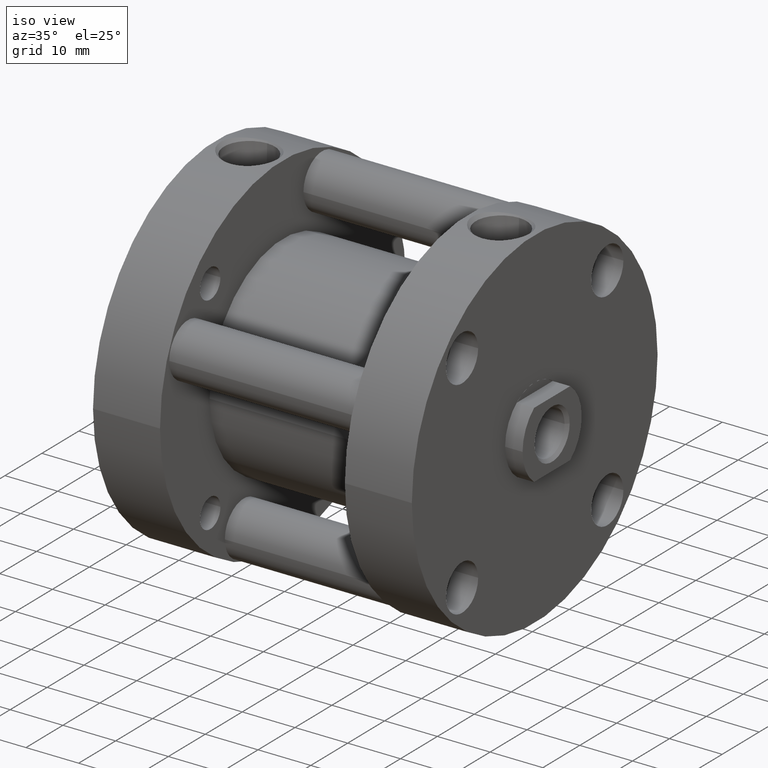
[diagram: clean part render]
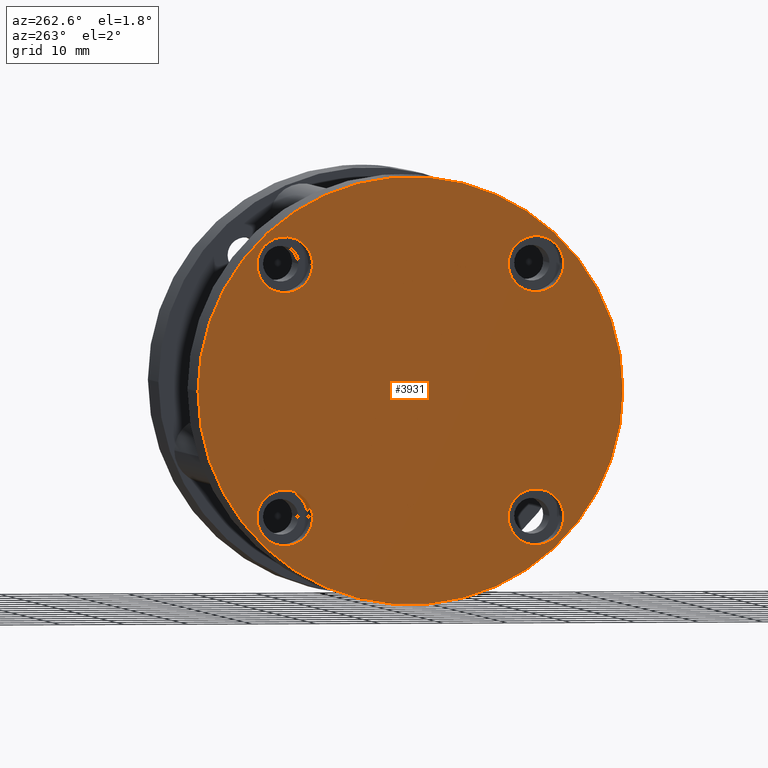
[diagram: tour spotlight — one face highlighted and labeled with its STEP entity id]
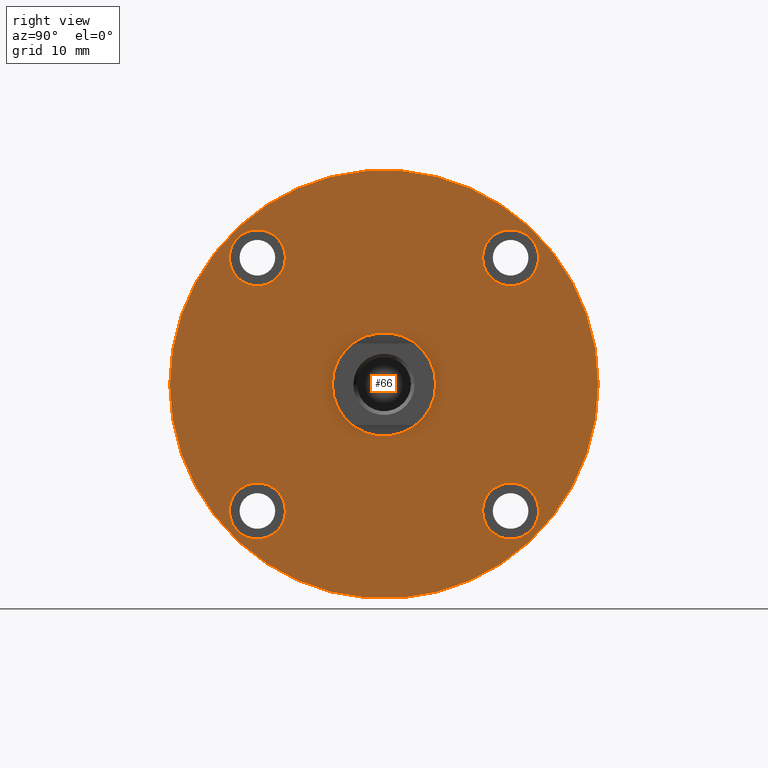
[diagram: tour spotlight — one face highlighted and labeled with its STEP entity id]
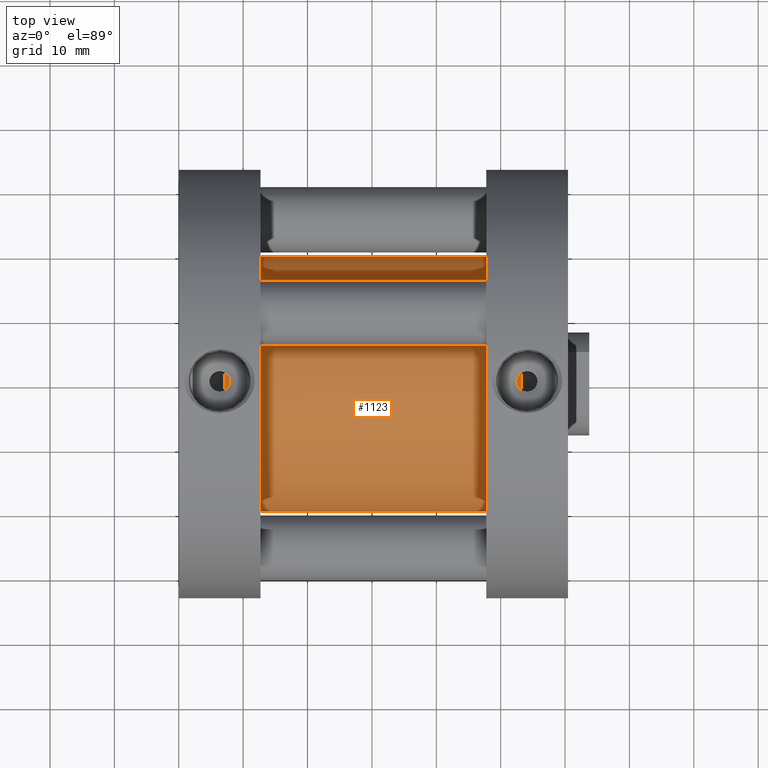
[diagram: tour spotlight — one face highlighted and labeled with its STEP entity id]
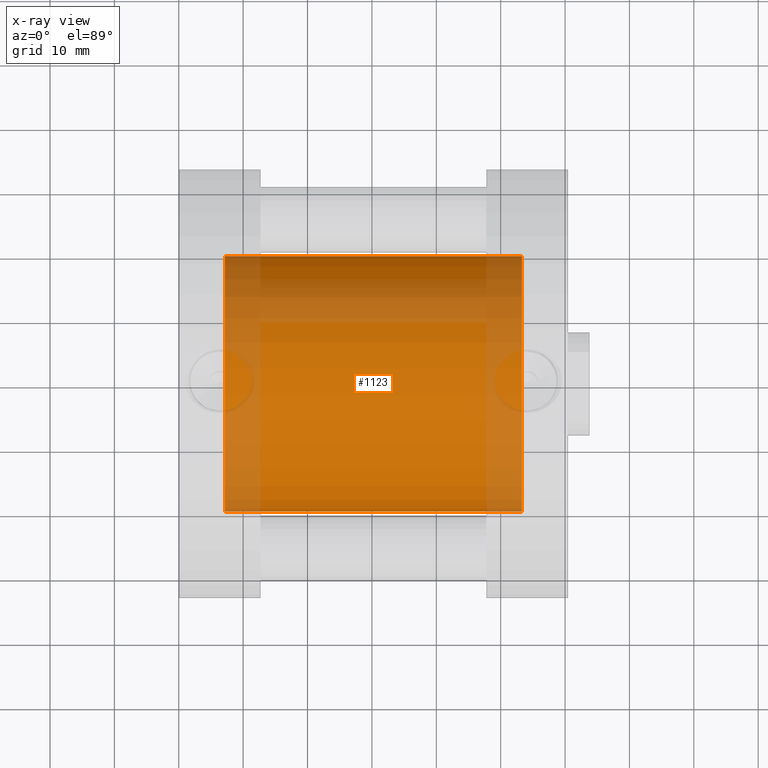
[diagram: x-ray of the same camera — body ghosted, this tour face saturated]
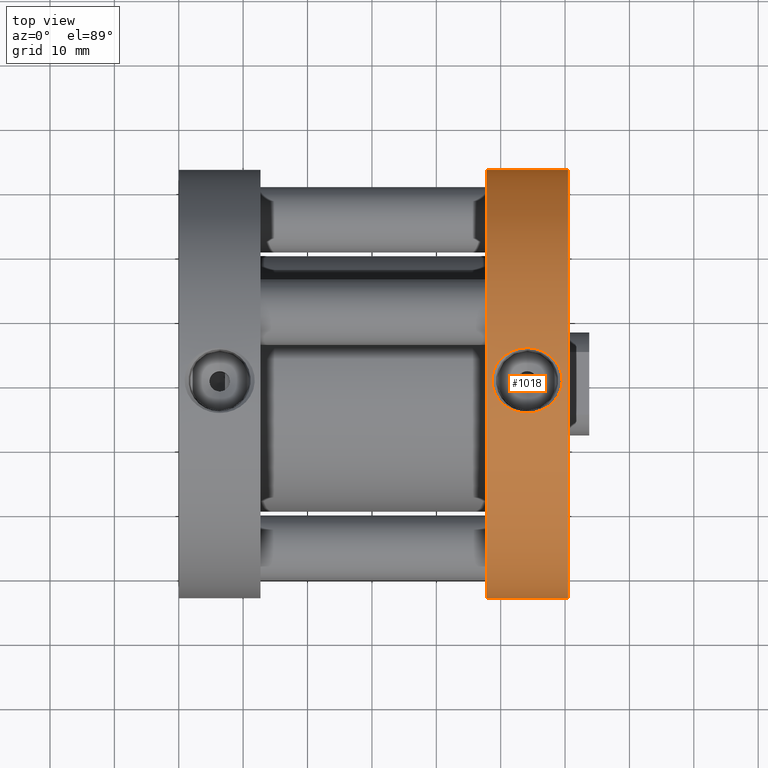
[diagram: tour spotlight — one face highlighted and labeled with its STEP entity id]
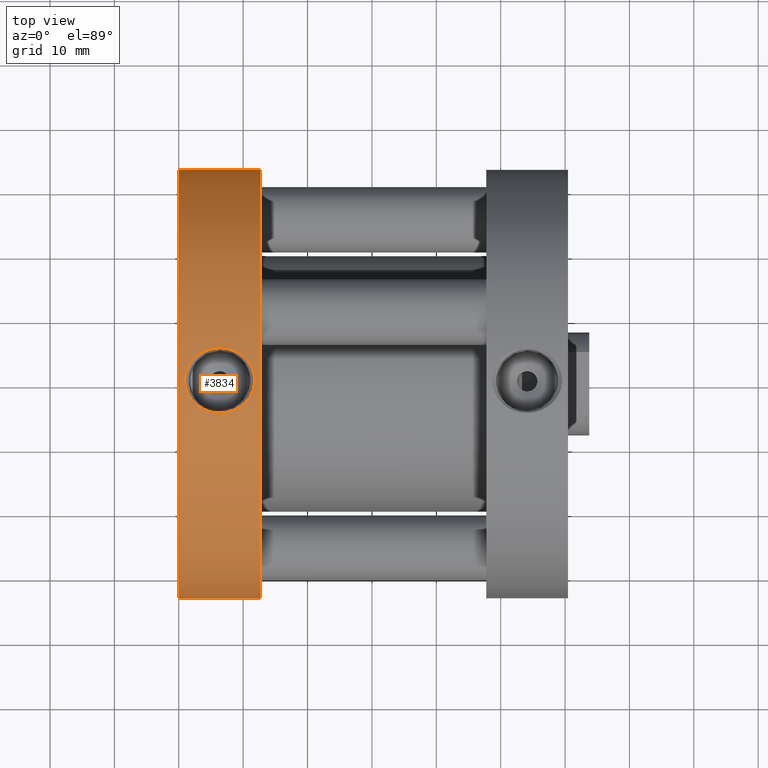
[diagram: tour spotlight — one face highlighted and labeled with its STEP entity id]
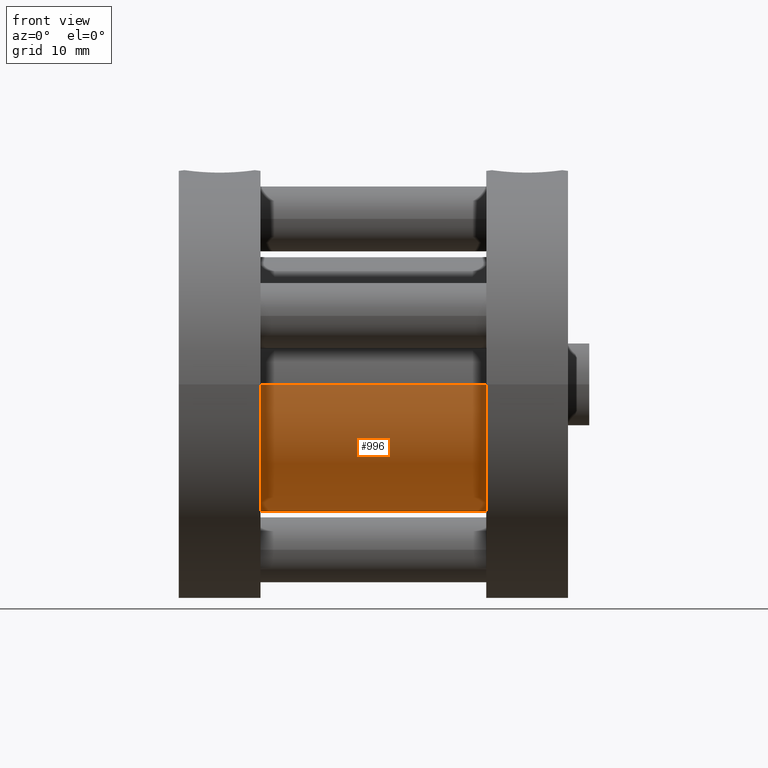
[diagram: tour spotlight — one face highlighted and labeled with its STEP entity id]
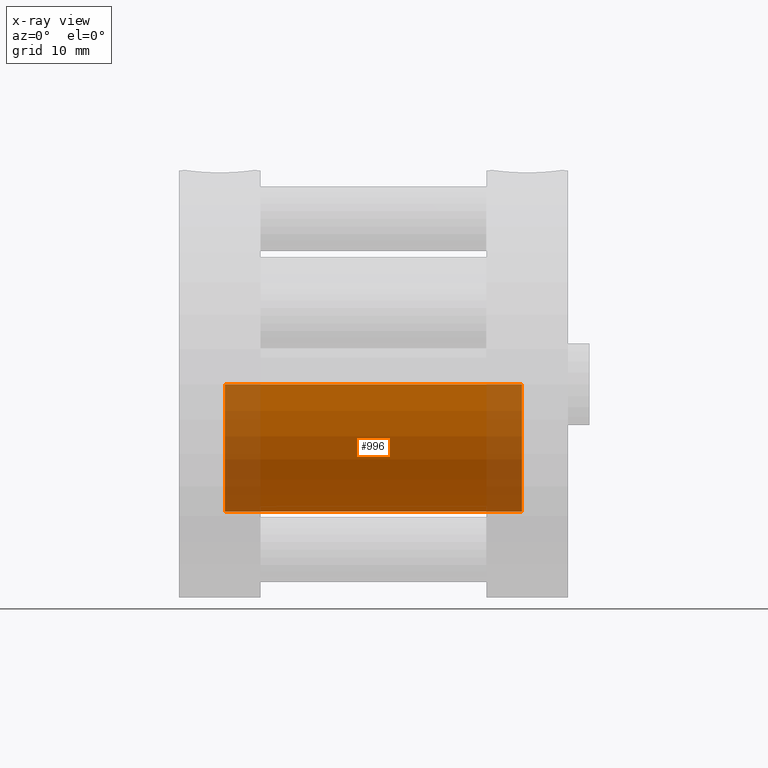
[diagram: x-ray of the same camera — body ghosted, this tour face saturated]
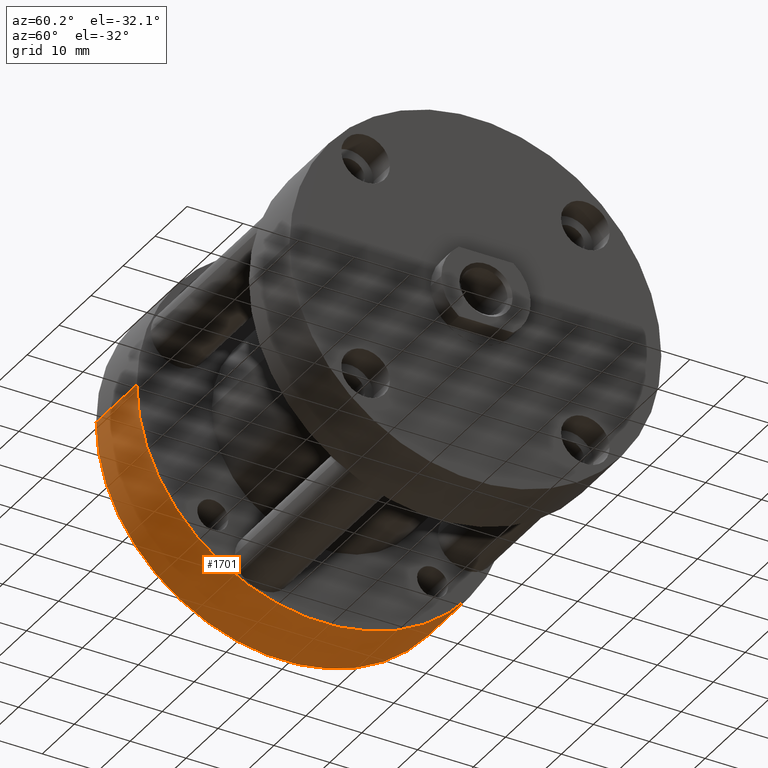
[diagram: tour spotlight — one face highlighted and labeled with its STEP entity id]
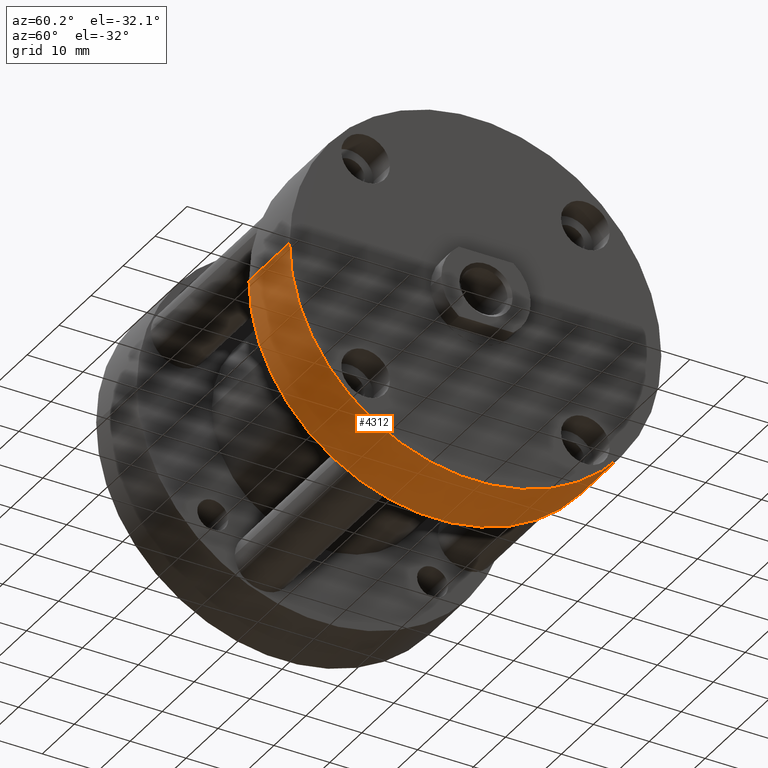
[diagram: tour spotlight — one face highlighted and labeled with its STEP entity id]
A machine part: a face-by-face anatomy tour. The part has 165 B-rep faces; the first image is the clean iso view, then the 8 largest visible faces are spotlighted one at a time (largest first), each with its STEP entity span.

Face 1 — auxiliary view, entity #3931. In plain terms, the highlighted planar face has unit normal (1, 0, -0).
Definition (entity closure, byte-faithful):
#15 = PLANE ( 'NONE',  #3351 ) ;
#43 = FACE_BOUND ( 'NONE', #4081, .T. ) ;
#81 = CARTESIAN_POINT ( 'NONE',  ( -0.7742819253992521100, 0.5000000000000001100, 0.6027819253992514600 ) ) ;
#139 = VERTEX_POINT ( 'NONE', #3752 ) ;
#160 = DIRECTION ( 'NONE',  ( -0.0000000000000000000, 1.000000000000000000, -0.0000000000000000000 ) ) ;
#198 = ORIENTED_EDGE ( 'NONE', *, *, #2751, .T. ) ;
#214 = ORIENTED_EDGE ( 'NONE', *, *, #231, .F. ) ;
#231 = EDGE_CURVE ( 'NONE', #4356, #267, #1766, .T. ) ;
#235 = EDGE_LOOP ( 'NONE', ( #214, #2656 ) ) ;
#267 = VERTEX_POINT ( 'NONE', #1084 ) ;
#330 = EDGE_CURVE ( 'NONE', #267, #4356, #504, .T. ) ;
#504 = CIRCLE ( 'NONE', #3875, 0.1715000000000006200 ) ;
#583 = ORIENTED_EDGE ( 'NONE', *, *, #3660, .F. ) ;
#651 = ORIENTED_EDGE ( 'NONE', *, *, #4209, .F. ) ;
#705 = CIRCLE ( 'NONE', #4138, 0.1715000000000006200 ) ;
#706 = CARTESIAN_POINT ( 'NONE',  ( -0.7742819253992521100, 0.5000000000000001100, -0.7742819253992521100 ) ) ;
#757 = CARTESIAN_POINT ( 'NONE',  ( 0.7742819253992521100, 0.5000000000000001100, 0.7742819253992521100 ) ) ;
#862 = EDGE_CURVE ( 'NONE', #1094, #2868, #705, .T. ) ;
#906 = CIRCLE ( 'NONE', #3857, 0.1715000000000006200 ) ;
#1006 = CARTESIAN_POINT ( 'NONE',  ( 0.7742819253992521100, 0.5000000000000001100, 0.6027819253992514600 ) ) ;
#1037 = DIRECTION ( 'NONE',  ( -0.0000000000000000000, 1.000000000000000000, -0.0000000000000000000 ) ) ;
#1048 = DIRECTION ( 'NONE',  ( 0.0000000000000000000, 1.000000000000000000, 0.0000000000000000000 ) ) ;
#1067 = DIRECTION ( 'NONE',  ( 0.0000000000000000000, 0.0000000000000000000, 1.000000000000000000 ) ) ;
#1084 = CARTESIAN_POINT ( 'NONE',  ( -0.7742819253992521100, 0.5000000000000001100, -0.9457819253992526500 ) ) ;
#1086 = DIRECTION ( 'NONE',  ( 0.0000000000000000000, -1.000000000000000000, -0.0000000000000000000 ) ) ;
#1094 = VERTEX_POINT ( 'NONE', #1006 ) ;
#1113 = DIRECTION ( 'NONE',  ( 0.0000000000000000000, 1.000000000000000000, 0.0000000000000000000 ) ) ;
#1125 = DIRECTION ( 'NONE',  ( 0.0000000000000000000, 0.0000000000000000000, 1.000000000000000000 ) ) ;
#1311 = CIRCLE ( 'NONE', #3405, 0.1715000000000006200 ) ;
#1343 = CARTESIAN_POINT ( 'NONE',  ( 0.0000000000000000000, 0.5000000000000000000, 1.310000000000000300 ) ) ;
#1409 = DIRECTION ( 'NONE',  ( -0.0000000000000000000, 1.000000000000000000, -0.0000000000000000000 ) ) ;
#1461 = VERTEX_POINT ( 'NONE', #2377 ) ;
#1487 = ORIENTED_EDGE ( 'NONE', *, *, #862, .F. ) ;
#1492 = VERTEX_POINT ( 'NONE', #1343 ) ;
#1499 = EDGE_CURVE ( 'NONE', #2868, #1094, #1834, .T. ) ;
#1522 = EDGE_LOOP ( 'NONE', ( #2741, #1487 ) ) ;
#1598 = DIRECTION ( 'NONE',  ( -0.0000000000000000000, 1.000000000000000000, -0.0000000000000000000 ) ) ;
#1640 = AXIS2_PLACEMENT_3D ( 'NONE', #3216, #1113, #3586 ) ;
#1766 = CIRCLE ( 'NONE', #1953, 0.1715000000000006200 ) ;
#1834 = CIRCLE ( 'NONE', #2825, 0.1715000000000006200 ) ;
#1892 = DIRECTION ( 'NONE',  ( -0.0000000000000000000, 1.000000000000000000, -0.0000000000000000000 ) ) ;
#1899 = DIRECTION ( 'NONE',  ( -0.0000000000000000000, 1.000000000000000000, -0.0000000000000000000 ) ) ;
#1914 = FACE_BOUND ( 'NONE', #1522, .T. ) ;
#1921 = CARTESIAN_POINT ( 'NONE',  ( 0.7742819253992521100, 0.5000000000000001100, -0.9457819253992526500 ) ) ;
#1953 = AXIS2_PLACEMENT_3D ( 'NONE', #706, #3178, #1067 ) ;
#1963 = CIRCLE ( 'NONE', #2306, 0.1715000000000006200 ) ;
#2041 = VERTEX_POINT ( 'NONE', #1921 ) ;
#2110 = VERTEX_POINT ( 'NONE', #81 ) ;
#2268 = CARTESIAN_POINT ( 'NONE',  ( 0.7742819253992521100, 0.5000000000000001100, 0.7742819253992521100 ) ) ;
#2296 = EDGE_LOOP ( 'NONE', ( #583, #3723 ) ) ;
#2306 = AXIS2_PLACEMENT_3D ( 'NONE', #4038, #1899, #4387 ) ;
#2377 = CARTESIAN_POINT ( 'NONE',  ( 0.7742819253992521100, 0.5000000000000001100, -0.6027819253992514600 ) ) ;
#2482 = AXIS2_PLACEMENT_3D ( 'NONE', #4033, #1892, #4384 ) ;
#2631 = DIRECTION ( 'NONE',  ( 0.0000000000000000000, 0.0000000000000000000, 1.000000000000000000 ) ) ;
#2656 = ORIENTED_EDGE ( 'NONE', *, *, #330, .F. ) ;
#2741 = ORIENTED_EDGE ( 'NONE', *, *, #1499, .F. ) ;
#2746 = FACE_OUTER_BOUND ( 'NONE', #3228, .T. ) ;
#2749 = ORIENTED_EDGE ( 'NONE', *, *, #2835, .T. ) ;
#2751 = EDGE_CURVE ( 'NONE', #1492, #3397, #4132, .T. ) ;
#2774 = EDGE_CURVE ( 'NONE', #2110, #139, #1311, .T. ) ;
#2825 = AXIS2_PLACEMENT_3D ( 'NONE', #2268, #160, #2631 ) ;
#2835 = EDGE_CURVE ( 'NONE', #3397, #1492, #2973, .T. ) ;
#2868 = VERTEX_POINT ( 'NONE', #4301 ) ;
#2973 = CIRCLE ( 'NONE', #1640, 1.310000000000000300 ) ;
#2980 = FACE_BOUND ( 'NONE', #2296, .T. ) ;
#3071 = CIRCLE ( 'NONE', #2482, 0.1715000000000006200 ) ;
#3152 = CARTESIAN_POINT ( 'NONE',  ( -0.7742819253992521100, 0.5000000000000001100, -0.7742819253992521100 ) ) ;
#3158 = CARTESIAN_POINT ( 'NONE',  ( 0.0000000000000000000, 0.5000000000000000000, 0.0000000000000000000 ) ) ;
#3164 = AXIS2_PLACEMENT_3D ( 'NONE', #3158, #1048, #3527 ) ;
#3178 = DIRECTION ( 'NONE',  ( -0.0000000000000000000, 1.000000000000000000, -0.0000000000000000000 ) ) ;
#3198 = CARTESIAN_POINT ( 'NONE',  ( 0.0000000000000000000, 0.5000000000000000000, 0.0000000000000000000 ) ) ;
#3216 = CARTESIAN_POINT ( 'NONE',  ( 0.0000000000000000000, 0.5000000000000000000, 0.0000000000000000000 ) ) ;
#3228 = EDGE_LOOP ( 'NONE', ( #198, #2749 ) ) ;
#3233 = DIRECTION ( 'NONE',  ( -0.0000000000000000000, 1.000000000000000000, -0.0000000000000000000 ) ) ;
#3297 = EDGE_CURVE ( 'NONE', #2041, #1461, #906, .T. ) ;
#3351 = AXIS2_PLACEMENT_3D ( 'NONE', #3198, #1086, #3562 ) ;
#3397 = VERTEX_POINT ( 'NONE', #3410 ) ;
#3405 = AXIS2_PLACEMENT_3D ( 'NONE', #3545, #1409, #3900 ) ;
#3410 = CARTESIAN_POINT ( 'NONE',  ( 1.604287306883033100E-016, 0.5000000000000000000, -1.310000000000000300 ) ) ;
#3516 = DIRECTION ( 'NONE',  ( 0.0000000000000000000, 0.0000000000000000000, 1.000000000000000000 ) ) ;
#3527 = DIRECTION ( 'NONE',  ( 0.0000000000000000000, 0.0000000000000000000, 1.000000000000000000 ) ) ;
#3545 = CARTESIAN_POINT ( 'NONE',  ( -0.7742819253992521100, 0.5000000000000001100, 0.7742819253992521100 ) ) ;
#3562 = DIRECTION ( 'NONE',  ( 0.0000000000000000000, 0.0000000000000000000, -1.000000000000000000 ) ) ;
#3586 = DIRECTION ( 'NONE',  ( 0.0000000000000000000, 0.0000000000000000000, 1.000000000000000000 ) ) ;
#3660 = EDGE_CURVE ( 'NONE', #1461, #2041, #3071, .T. ) ;
#3713 = FACE_BOUND ( 'NONE', #235, .T. ) ;
#3723 = ORIENTED_EDGE ( 'NONE', *, *, #3297, .F. ) ;
#3744 = CARTESIAN_POINT ( 'NONE',  ( 0.7742819253992521100, 0.5000000000000001100, -0.7742819253992521100 ) ) ;
#3752 = CARTESIAN_POINT ( 'NONE',  ( -0.7742819253992521100, 0.5000000000000001100, 0.9457819253992526500 ) ) ;
#3857 = AXIS2_PLACEMENT_3D ( 'NONE', #3744, #1598, #4091 ) ;
#3875 = AXIS2_PLACEMENT_3D ( 'NONE', #3152, #1037, #3516 ) ;
#3878 = CARTESIAN_POINT ( 'NONE',  ( -0.7742819253992521100, 0.5000000000000001100, -0.6027819253992514600 ) ) ;
#3900 = DIRECTION ( 'NONE',  ( 0.0000000000000000000, 0.0000000000000000000, 1.000000000000000000 ) ) ;
#3931 = ADVANCED_FACE ( 'PLANAR_0', ( #3713, #2980, #1914, #43, #2746 ), #15, .F. ) ;
#4033 = CARTESIAN_POINT ( 'NONE',  ( 0.7742819253992521100, 0.5000000000000001100, -0.7742819253992521100 ) ) ;
#4038 = CARTESIAN_POINT ( 'NONE',  ( -0.7742819253992521100, 0.5000000000000001100, 0.7742819253992521100 ) ) ;
#4081 = EDGE_LOOP ( 'NONE', ( #651, #4197 ) ) ;
#4091 = DIRECTION ( 'NONE',  ( 0.0000000000000000000, 0.0000000000000000000, 1.000000000000000000 ) ) ;
#4132 = CIRCLE ( 'NONE', #3164, 1.310000000000000300 ) ;
#4138 = AXIS2_PLACEMENT_3D ( 'NONE', #757, #3233, #1125 ) ;
#4197 = ORIENTED_EDGE ( 'NONE', *, *, #2774, .F. ) ;
#4209 = EDGE_CURVE ( 'NONE', #139, #2110, #1963, .T. ) ;
#4301 = CARTESIAN_POINT ( 'NONE',  ( 0.7742819253992521100, 0.5000000000000001100, 0.9457819253992526500 ) ) ;
#4356 = VERTEX_POINT ( 'NONE', #3878 ) ;
#4384 = DIRECTION ( 'NONE',  ( 0.0000000000000000000, 0.0000000000000000000, 1.000000000000000000 ) ) ;
#4387 = DIRECTION ( 'NONE',  ( 0.0000000000000000000, 0.0000000000000000000, 1.000000000000000000 ) ) ;

Face 2 — right view, entity #66. In plain terms, the highlighted planar face has unit normal (-1, 0, -0).
Definition (entity closure, byte-faithful):
#31 = CIRCLE ( 'NONE', #4147, 0.1715000000000006200 ) ;
#64 = ORIENTED_EDGE ( 'NONE', *, *, #3828, .F. ) ;
#66 = ADVANCED_FACE ( 'PLANAR_1', ( #4139, #823, #3877, #3202, #2255, #1318 ), #1933, .F. ) ;
#101 = DIRECTION ( 'NONE',  ( 0.0000000000000000000, 1.000000000000000000, 0.0000000000000000000 ) ) ;
#112 = CARTESIAN_POINT ( 'NONE',  ( 0.0000000000000000000, 0.5000000000000000000, 1.310000000000000300 ) ) ;
#147 = CARTESIAN_POINT ( 'NONE',  ( -0.7742819253992521100, 0.5000000000000001100, -0.7742819253992521100 ) ) ;
#161 = VERTEX_POINT ( 'NONE', #2322 ) ;
#208 = CARTESIAN_POINT ( 'NONE',  ( -0.7742819253992521100, 0.5000000000000001100, 0.9457819253992526500 ) ) ;
#221 = DIRECTION ( 'NONE',  ( 0.0000000000000000000, 0.0000000000000000000, 1.000000000000000000 ) ) ;
#303 = AXIS2_PLACEMENT_3D ( 'NONE', #3724, #2655, #535 ) ;
#452 = AXIS2_PLACEMENT_3D ( 'NONE', #4459, #2331, #221 ) ;
#468 = CARTESIAN_POINT ( 'NONE',  ( 0.0000000000000000000, 0.5000000000000000000, 0.0000000000000000000 ) ) ;
#475 = CARTESIAN_POINT ( 'NONE',  ( -0.7742819253992521100, 0.5000000000000001100, 0.7742819253992521100 ) ) ;
#481 = CIRCLE ( 'NONE', #1359, 0.1715000000000006200 ) ;
#500 = DIRECTION ( 'NONE',  ( 0.0000000000000000000, 0.0000000000000000000, 1.000000000000000000 ) ) ;
#535 = DIRECTION ( 'NONE',  ( 0.0000000000000000000, 0.0000000000000000000, -1.000000000000000000 ) ) ;
#555 = CARTESIAN_POINT ( 'NONE',  ( 0.7742819253992521100, 0.5000000000000001100, 0.7742819253992521100 ) ) ;
#593 = DIRECTION ( 'NONE',  ( 0.0000000000000000000, 0.0000000000000000000, 1.000000000000000000 ) ) ;
#613 = VERTEX_POINT ( 'NONE', #112 ) ;
#615 = EDGE_CURVE ( 'NONE', #1127, #683, #1916, .T. ) ;
#645 = CIRCLE ( 'NONE', #1134, 0.1715000000000006200 ) ;
#652 = AXIS2_PLACEMENT_3D ( 'NONE', #2208, #101, #2572 ) ;
#683 = VERTEX_POINT ( 'NONE', #2388 ) ;
#739 = CIRCLE ( 'NONE', #4463, 0.3160000000000005600 ) ;
#770 = EDGE_CURVE ( 'NONE', #1386, #3239, #3652, .T. ) ;
#775 = VERTEX_POINT ( 'NONE', #4343 ) ;
#808 = EDGE_CURVE ( 'NONE', #2805, #888, #4466, .T. ) ;
#823 = FACE_BOUND ( 'NONE', #2972, .T. ) ;
#829 = DIRECTION ( 'NONE',  ( 0.0000000000000000000, 0.0000000000000000000, 1.000000000000000000 ) ) ;
#834 = DIRECTION ( 'NONE',  ( 0.0000000000000000000, 0.0000000000000000000, 1.000000000000000000 ) ) ;
#876 = DIRECTION ( 'NONE',  ( -0.0000000000000000000, 1.000000000000000000, -0.0000000000000000000 ) ) ;
#888 = VERTEX_POINT ( 'NONE', #1459 ) ;
#913 = DIRECTION ( 'NONE',  ( 0.0000000000000000000, 0.0000000000000000000, 1.000000000000000000 ) ) ;
#970 = AXIS2_PLACEMENT_3D ( 'NONE', #468, #2942, #829 ) ;
#1080 = CARTESIAN_POINT ( 'NONE',  ( 3.869883885305642400E-017, 0.5000000000000001100, 0.3160000000000005600 ) ) ;
#1127 = VERTEX_POINT ( 'NONE', #2436 ) ;
#1134 = AXIS2_PLACEMENT_3D ( 'NONE', #4000, #1871, #4354 ) ;
#1222 = CARTESIAN_POINT ( 'NONE',  ( 0.0000000000000000000, 0.5000000000000001100, 0.0000000000000000000 ) ) ;
#1296 = CIRCLE ( 'NONE', #970, 1.310000000000000300 ) ;
#1318 = FACE_OUTER_BOUND ( 'NONE', #4428, .T. ) ;
#1357 = EDGE_CURVE ( 'NONE', #888, #2805, #739, .T. ) ;
#1359 = AXIS2_PLACEMENT_3D ( 'NONE', #2083, #4556, #2438 ) ;
#1379 = AXIS2_PLACEMENT_3D ( 'NONE', #3319, #2708, #593 ) ;
#1381 = ORIENTED_EDGE ( 'NONE', *, *, #4324, .F. ) ;
#1386 = VERTEX_POINT ( 'NONE', #208 ) ;
#1392 = EDGE_CURVE ( 'NONE', #683, #1127, #3462, .T. ) ;
#1430 = EDGE_LOOP ( 'NONE', ( #2475, #2015 ) ) ;
#1459 = CARTESIAN_POINT ( 'NONE',  ( 0.0000000000000000000, 0.5000000000000001100, -0.3160000000000005600 ) ) ;
#1550 = DIRECTION ( 'NONE',  ( 0.0000000000000000000, 0.0000000000000000000, -1.000000000000000000 ) ) ;
#1719 = DIRECTION ( 'NONE',  ( -0.0000000000000000000, -1.000000000000000000, -0.0000000000000000000 ) ) ;
#1803 = ORIENTED_EDGE ( 'NONE', *, *, #4117, .T. ) ;
#1871 = DIRECTION ( 'NONE',  ( -0.0000000000000000000, 1.000000000000000000, -0.0000000000000000000 ) ) ;
#1916 = CIRCLE ( 'NONE', #1379, 0.1715000000000006200 ) ;
#1927 = CARTESIAN_POINT ( 'NONE',  ( 0.7742819253992521100, 0.5000000000000001100, 0.9457819253992526500 ) ) ;
#1933 = PLANE ( 'NONE',  #303 ) ;
#1988 = AXIS2_PLACEMENT_3D ( 'NONE', #475, #2947, #834 ) ;
#2004 = EDGE_CURVE ( 'NONE', #775, #4185, #3750, .T. ) ;
#2015 = ORIENTED_EDGE ( 'NONE', *, *, #4143, .F. ) ;
#2083 = CARTESIAN_POINT ( 'NONE',  ( -0.7742819253992521100, 0.5000000000000001100, -0.7742819253992521100 ) ) ;
#2134 = CARTESIAN_POINT ( 'NONE',  ( -0.7742819253992521100, 0.5000000000000001100, 0.6027819253992514600 ) ) ;
#2163 = EDGE_CURVE ( 'NONE', #613, #161, #1296, .T. ) ;
#2190 = CIRCLE ( 'NONE', #652, 1.310000000000000300 ) ;
#2208 = CARTESIAN_POINT ( 'NONE',  ( 0.0000000000000000000, 0.5000000000000000000, 0.0000000000000000000 ) ) ;
#2211 = ORIENTED_EDGE ( 'NONE', *, *, #1357, .T. ) ;
#2237 = AXIS2_PLACEMENT_3D ( 'NONE', #147, #2616, #500 ) ;
#2240 = ORIENTED_EDGE ( 'NONE', *, *, #2004, .F. ) ;
#2244 = CARTESIAN_POINT ( 'NONE',  ( -0.7742819253992521100, 0.5000000000000001100, -0.6027819253992514600 ) ) ;
#2255 = FACE_BOUND ( 'NONE', #2625, .T. ) ;
#2322 = CARTESIAN_POINT ( 'NONE',  ( 1.604287306883033100E-016, 0.5000000000000000000, -1.310000000000000300 ) ) ;
#2331 = DIRECTION ( 'NONE',  ( -0.0000000000000000000, 1.000000000000000000, -0.0000000000000000000 ) ) ;
#2388 = CARTESIAN_POINT ( 'NONE',  ( 0.7742819253992521100, 0.5000000000000001100, -0.9457819253992526500 ) ) ;
#2436 = CARTESIAN_POINT ( 'NONE',  ( 0.7742819253992521100, 0.5000000000000001100, -0.6027819253992514600 ) ) ;
#2438 = DIRECTION ( 'NONE',  ( 0.0000000000000000000, 0.0000000000000000000, 1.000000000000000000 ) ) ;
#2475 = ORIENTED_EDGE ( 'NONE', *, *, #770, .F. ) ;
#2572 = DIRECTION ( 'NONE',  ( 0.0000000000000000000, 0.0000000000000000000, 1.000000000000000000 ) ) ;
#2616 = DIRECTION ( 'NONE',  ( -0.0000000000000000000, 1.000000000000000000, -0.0000000000000000000 ) ) ;
#2625 = EDGE_LOOP ( 'NONE', ( #1381, #2240 ) ) ;
#2655 = DIRECTION ( 'NONE',  ( 0.0000000000000000000, -1.000000000000000000, -0.0000000000000000000 ) ) ;
#2708 = DIRECTION ( 'NONE',  ( -0.0000000000000000000, 1.000000000000000000, -0.0000000000000000000 ) ) ;
#2805 = VERTEX_POINT ( 'NONE', #1080 ) ;
#2891 = CIRCLE ( 'NONE', #3380, 0.1715000000000006200 ) ;
#2942 = DIRECTION ( 'NONE',  ( 0.0000000000000000000, 1.000000000000000000, 0.0000000000000000000 ) ) ;
#2947 = DIRECTION ( 'NONE',  ( -0.0000000000000000000, 1.000000000000000000, -0.0000000000000000000 ) ) ;
#2972 = EDGE_LOOP ( 'NONE', ( #4071, #3902 ) ) ;
#2996 = CARTESIAN_POINT ( 'NONE',  ( 0.7742819253992521100, 0.5000000000000001100, 0.7742819253992521100 ) ) ;
#3033 = DIRECTION ( 'NONE',  ( -0.0000000000000000000, 1.000000000000000000, -0.0000000000000000000 ) ) ;
#3189 = AXIS2_PLACEMENT_3D ( 'NONE', #1222, #3699, #1550 ) ;
#3202 = FACE_BOUND ( 'NONE', #1430, .T. ) ;
#3225 = EDGE_CURVE ( 'NONE', #3250, #3786, #2891, .T. ) ;
#3230 = ORIENTED_EDGE ( 'NONE', *, *, #808, .T. ) ;
#3239 = VERTEX_POINT ( 'NONE', #2134 ) ;
#3250 = VERTEX_POINT ( 'NONE', #1927 ) ;
#3319 = CARTESIAN_POINT ( 'NONE',  ( 0.7742819253992521100, 0.5000000000000001100, -0.7742819253992521100 ) ) ;
#3348 = DIRECTION ( 'NONE',  ( 0.0000000000000000000, 0.0000000000000000000, 1.000000000000000000 ) ) ;
#3380 = AXIS2_PLACEMENT_3D ( 'NONE', #2996, #876, #3348 ) ;
#3462 = CIRCLE ( 'NONE', #452, 0.1715000000000006200 ) ;
#3610 = ORIENTED_EDGE ( 'NONE', *, *, #2163, .T. ) ;
#3643 = EDGE_LOOP ( 'NONE', ( #2211, #3230 ) ) ;
#3652 = CIRCLE ( 'NONE', #1988, 0.1715000000000006200 ) ;
#3699 = DIRECTION ( 'NONE',  ( -0.0000000000000000000, -1.000000000000000000, -0.0000000000000000000 ) ) ;
#3724 = CARTESIAN_POINT ( 'NONE',  ( 0.0000000000000000000, 0.5000000000000000000, 0.0000000000000000000 ) ) ;
#3750 = CIRCLE ( 'NONE', #2237, 0.1715000000000006200 ) ;
#3786 = VERTEX_POINT ( 'NONE', #4079 ) ;
#3828 = EDGE_CURVE ( 'NONE', #3786, #3250, #31, .T. ) ;
#3863 = CARTESIAN_POINT ( 'NONE',  ( 0.0000000000000000000, 0.5000000000000001100, 0.0000000000000000000 ) ) ;
#3872 = ORIENTED_EDGE ( 'NONE', *, *, #3225, .F. ) ;
#3877 = FACE_BOUND ( 'NONE', #3879, .T. ) ;
#3879 = EDGE_LOOP ( 'NONE', ( #3872, #64 ) ) ;
#3902 = ORIENTED_EDGE ( 'NONE', *, *, #1392, .F. ) ;
#4000 = CARTESIAN_POINT ( 'NONE',  ( -0.7742819253992521100, 0.5000000000000001100, 0.7742819253992521100 ) ) ;
#4071 = ORIENTED_EDGE ( 'NONE', *, *, #615, .F. ) ;
#4079 = CARTESIAN_POINT ( 'NONE',  ( 0.7742819253992521100, 0.5000000000000001100, 0.6027819253992514600 ) ) ;
#4117 = EDGE_CURVE ( 'NONE', #161, #613, #2190, .T. ) ;
#4139 = FACE_BOUND ( 'NONE', #3643, .T. ) ;
#4143 = EDGE_CURVE ( 'NONE', #3239, #1386, #645, .T. ) ;
#4147 = AXIS2_PLACEMENT_3D ( 'NONE', #555, #3033, #913 ) ;
#4185 = VERTEX_POINT ( 'NONE', #2244 ) ;
#4211 = DIRECTION ( 'NONE',  ( 0.0000000000000000000, 0.0000000000000000000, -1.000000000000000000 ) ) ;
#4324 = EDGE_CURVE ( 'NONE', #4185, #775, #481, .T. ) ;
#4343 = CARTESIAN_POINT ( 'NONE',  ( -0.7742819253992521100, 0.5000000000000001100, -0.9457819253992526500 ) ) ;
#4354 = DIRECTION ( 'NONE',  ( 0.0000000000000000000, 0.0000000000000000000, 1.000000000000000000 ) ) ;
#4428 = EDGE_LOOP ( 'NONE', ( #3610, #1803 ) ) ;
#4459 = CARTESIAN_POINT ( 'NONE',  ( 0.7742819253992521100, 0.5000000000000001100, -0.7742819253992521100 ) ) ;
#4463 = AXIS2_PLACEMENT_3D ( 'NONE', #3863, #1719, #4211 ) ;
#4466 = CIRCLE ( 'NONE', #3189, 0.3160000000000005600 ) ;
#4556 = DIRECTION ( 'NONE',  ( -0.0000000000000000000, 1.000000000000000000, -0.0000000000000000000 ) ) ;

Face 3 — top view, entity #1123. An x-ray twin of the same camera follows (body ghosted, this face saturated) — the face is partly hidden behind the body. In plain terms, the highlighted cylindrical surface (partial cylindrical patch) has radius 19.8501 mm, axis along (1, 0, 0).
Definition (entity closure, byte-faithful):
#88 = VERTEX_POINT ( 'NONE', #4073 ) ;
#185 = DIRECTION ( 'NONE',  ( 0.0000000000000000000, 0.0000000000000000000, 1.000000000000000000 ) ) ;
#368 = CIRCLE ( 'NONE', #3504, 0.7815000000000000800 ) ;
#715 = VERTEX_POINT ( 'NONE', #2882 ) ;
#794 = CIRCLE ( 'NONE', #4025, 0.7815000000000000800 ) ;
#798 = FACE_OUTER_BOUND ( 'NONE', #2065, .T. ) ;
#830 = VERTEX_POINT ( 'NONE', #2857 ) ;
#1025 = DIRECTION ( 'NONE',  ( 0.0000000000000000000, 1.000000000000000000, 0.0000000000000000000 ) ) ;
#1058 = DIRECTION ( 'NONE',  ( 0.0000000000000000000, 1.000000000000000000, 0.0000000000000000000 ) ) ;
#1123 = ADVANCED_FACE ( 'CYL_1', ( #798 ), #3069, .T. ) ;
#1349 = AXIS2_PLACEMENT_3D ( 'NONE', #3501, #1025, #1373 ) ;
#1373 = DIRECTION ( 'NONE',  ( 0.0000000000000000000, 0.0000000000000000000, 1.000000000000000000 ) ) ;
#1406 = LINE ( 'NONE', #2219, #2458 ) ;
#1431 = ORIENTED_EDGE ( 'NONE', *, *, #1596, .F. ) ;
#1433 = ORIENTED_EDGE ( 'NONE', *, *, #3622, .T. ) ;
#1596 = EDGE_CURVE ( 'NONE', #830, #88, #794, .T. ) ;
#1983 = ORIENTED_EDGE ( 'NONE', *, *, #4039, .F. ) ;
#2065 = EDGE_LOOP ( 'NONE', ( #1983, #3820, #1433, #1431 ) ) ;
#2219 = CARTESIAN_POINT ( 'NONE',  ( 0.0000000000000000000, 0.0000000000000000000, 0.7815000000000000800 ) ) ;
#2298 = DIRECTION ( 'NONE',  ( 0.0000000000000000000, 1.000000000000000000, 0.0000000000000000000 ) ) ;
#2301 = VECTOR ( 'NONE', #3236, 39.37007874015748100 ) ;
#2315 = VERTEX_POINT ( 'NONE', #4438 ) ;
#2458 = VECTOR ( 'NONE', #4346, 39.37007874015748100 ) ;
#2857 = CARTESIAN_POINT ( 'NONE',  ( 9.570614735336565700E-017, 1.816000000000000100, -0.7815000000000000800 ) ) ;
#2877 = CARTESIAN_POINT ( 'NONE',  ( 9.570614735336565700E-017, 0.0000000000000000000, -0.7815000000000000800 ) ) ;
#2882 = CARTESIAN_POINT ( 'NONE',  ( 0.0000000000000000000, 0.0000000000000000000, 0.7815000000000000800 ) ) ;
#3069 = CYLINDRICAL_SURFACE ( 'NONE', #1349, 0.7815000000000000800 ) ;
#3166 = CARTESIAN_POINT ( 'NONE',  ( 0.0000000000000000000, 0.0000000000000000000, 0.0000000000000000000 ) ) ;
#3236 = DIRECTION ( 'NONE',  ( 0.0000000000000000000, 1.000000000000000000, 0.0000000000000000000 ) ) ;
#3248 = LINE ( 'NONE', #2877, #2301 ) ;
#3501 = CARTESIAN_POINT ( 'NONE',  ( 0.0000000000000000000, 0.0000000000000000000, 0.0000000000000000000 ) ) ;
#3504 = AXIS2_PLACEMENT_3D ( 'NONE', #3166, #1058, #3539 ) ;
#3539 = DIRECTION ( 'NONE',  ( 0.0000000000000000000, 0.0000000000000000000, 1.000000000000000000 ) ) ;
#3622 = EDGE_CURVE ( 'NONE', #715, #88, #1406, .T. ) ;
#3820 = ORIENTED_EDGE ( 'NONE', *, *, #4368, .T. ) ;
#4025 = AXIS2_PLACEMENT_3D ( 'NONE', #4427, #2298, #185 ) ;
#4039 = EDGE_CURVE ( 'NONE', #2315, #830, #3248, .T. ) ;
#4073 = CARTESIAN_POINT ( 'NONE',  ( 0.0000000000000000000, 1.816000000000000100, 0.7815000000000000800 ) ) ;
#4346 = DIRECTION ( 'NONE',  ( 0.0000000000000000000, 1.000000000000000000, 0.0000000000000000000 ) ) ;
#4368 = EDGE_CURVE ( 'NONE', #2315, #715, #368, .T. ) ;
#4427 = CARTESIAN_POINT ( 'NONE',  ( 0.0000000000000000000, 1.816000000000000100, 0.0000000000000000000 ) ) ;
#4438 = CARTESIAN_POINT ( 'NONE',  ( 9.570614735336565700E-017, 0.0000000000000000000, -0.7815000000000000800 ) ) ;

Face 4 — top view, entity #1018. In plain terms, the highlighted cylindrical surface (partial cylindrical patch) has radius 33.274 mm, axis along (1, 0, 0).
Definition (entity closure, byte-faithful):
#12 = CARTESIAN_POINT ( 'NONE',  ( -1.308346473797844700, 0.4527616815204827900, 0.06692837702606643800 ) ) ;
#25 = CARTESIAN_POINT ( 'NONE',  ( -1.304599289244482700, 0.4224027951707028400, -0.1189560196049185800 ) ) ;
#101 = DIRECTION ( 'NONE',  ( 0.0000000000000000000, 1.000000000000000000, 0.0000000000000000000 ) ) ;
#112 = CARTESIAN_POINT ( 'NONE',  ( 0.0000000000000000000, 0.5000000000000000000, 1.310000000000000300 ) ) ;
#161 = VERTEX_POINT ( 'NONE', #2322 ) ;
#220 = CARTESIAN_POINT ( 'NONE',  ( -1.301115836878163900, 0.1111316978281042700, -0.1525821996098389900 ) ) ;
#243 = DIRECTION ( 'NONE',  ( 0.0000000000000000000, 0.0000000000000000000, 1.000000000000000000 ) ) ;
#250 = CARTESIAN_POINT ( 'NONE',  ( 0.0000000000000000000, 0.0000000000000000000, 1.310000000000000300 ) ) ;
#313 = CARTESIAN_POINT ( 'NONE',  ( -1.310052166578463500, 0.03488000530807641700, -3.084948540556271100E-005 ) ) ;
#328 = CARTESIAN_POINT ( 'NONE',  ( -1.300133285814381700, 0.1221059358904949800, 0.1606320197486997000 ) ) ;
#343 = CARTESIAN_POINT ( 'NONE',  ( -1.296171194334106100, 0.3169922726556844700, 0.1899020160834596100 ) ) ;
#361 = CARTESIAN_POINT ( 'NONE',  ( -1.309780045165914100, 0.4632032959868516200, 0.02740836088389702800 ) ) ;
#373 = CARTESIAN_POINT ( 'NONE',  ( -1.303112113395921800, 0.4088353388250692300, -0.1342539936135782300 ) ) ;
#552 = ORIENTED_EDGE ( 'NONE', *, *, #989, .T. ) ;
#565 = VERTEX_POINT ( 'NONE', #811 ) ;
#574 = CARTESIAN_POINT ( 'NONE',  ( -1.304122205106053300, 0.08169549458460868800, -0.1244332703459391500 ) ) ;
#613 = VERTEX_POINT ( 'NONE', #112 ) ;
#652 = AXIS2_PLACEMENT_3D ( 'NONE', #2208, #101, #2572 ) ;
#669 = CARTESIAN_POINT ( 'NONE',  ( -1.309739102802828000, 0.03710833284578387400, 0.02700394962149075700 ) ) ;
#685 = CARTESIAN_POINT ( 'NONE',  ( -1.297515251932929400, 0.1577132145168027300, 0.1804905497833158600 ) ) ;
#704 = CARTESIAN_POINT ( 'NONE',  ( -1.298321683377117400, 0.3544663104706391500, 0.1746736778052881100 ) ) ;
#718 = CARTESIAN_POINT ( 'NONE',  ( -1.310001844486218000, 0.4647636442937685400, -0.006447479259652251800 ) ) ;
#730 = CARTESIAN_POINT ( 'NONE',  ( -1.301122261477841000, 0.3889315111043557000, -0.1525223070106952200 ) ) ;
#811 = CARTESIAN_POINT ( 'NONE',  ( 1.604287306883033100E-016, 0.0000000000000000000, -1.310000000000000300 ) ) ;
#838 = DIRECTION ( 'NONE',  ( 0.0000000000000000000, 1.000000000000000000, 0.0000000000000000000 ) ) ;
#866 = ORIENTED_EDGE ( 'NONE', *, *, #2357, .F. ) ;
#934 = CARTESIAN_POINT ( 'NONE',  ( -1.306897366647821900, 0.05841015636011338800, -0.09093651713077473300 ) ) ;
#955 = DIRECTION ( 'NONE',  ( 0.0000000000000000000, 1.000000000000000000, 0.0000000000000000000 ) ) ;
#989 = EDGE_CURVE ( 'NONE', #565, #2593, #1950, .T. ) ;
#1018 = ADVANCED_FACE ( 'CYL_2', ( #2680, #2896 ), #4449, .T. ) ;
#1033 = CARTESIAN_POINT ( 'NONE',  ( -1.308966813851681500, 0.04268938317890482600, 0.05368300502985914900 ) ) ;
#1050 = CARTESIAN_POINT ( 'NONE',  ( -1.295636565482893900, 0.1960743532196009300, 0.1934729444084259100 ) ) ;
#1065 = CARTESIAN_POINT ( 'NONE',  ( -1.301107844357750000, 0.3887729431862156900, 0.1526423620779250000 ) ) ;
#1083 = CARTESIAN_POINT ( 'NONE',  ( -1.309742207393114000, 0.4629138747239651700, -0.02685272538780197900 ) ) ;
#1102 = CARTESIAN_POINT ( 'NONE',  ( -1.298329421010859800, 0.3545742317648848400, -0.1746157167635197800 ) ) ;
#1211 = CARTESIAN_POINT ( 'NONE',  ( -1.294723889047783000, 0.2500000000000000600, -0.1994744372820350400 ) ) ;
#1237 = EDGE_LOOP ( 'NONE', ( #2700, #552, #2347, #1808 ) ) ;
#1289 = CARTESIAN_POINT ( 'NONE',  ( -1.308965604588198600, 0.04269814177722185100, -0.05372247808338084800 ) ) ;
#1382 = CARTESIAN_POINT ( 'NONE',  ( -1.307257196596577400, 0.05563803534821036600, 0.08495130727679199600 ) ) ;
#1395 = CARTESIAN_POINT ( 'NONE',  ( -1.294723889047783200, 0.2364999867345965700, 0.1994744372820353200 ) ) ;
#1410 = CARTESIAN_POINT ( 'NONE',  ( -1.303089508364002600, 0.4086198962756407100, 0.1344722336726124300 ) ) ;
#1427 = CARTESIAN_POINT ( 'NONE',  ( -1.308932774861512700, 0.4570511296095536900, -0.05325982570614318200 ) ) ;
#1439 = CARTESIAN_POINT ( 'NONE',  ( -1.296172635462837100, 0.3170324400385300900, -0.1898927232254642700 ) ) ;
#1508 = EDGE_LOOP ( 'NONE', ( #866, #3910 ) ) ;
#1544 = DIRECTION ( 'NONE',  ( 0.0000000000000000000, 1.000000000000000000, 0.0000000000000000000 ) ) ;
#1616 = CARTESIAN_POINT ( 'NONE',  ( -1.295636606077602100, 0.1960907939369472300, -0.1934725534473563400 ) ) ;
#1727 = CARTESIAN_POINT ( 'NONE',  ( -1.305984351362021700, 0.06583667953236539700, 0.1026593688521908600 ) ) ;
#1746 = CARTESIAN_POINT ( 'NONE',  ( -1.294723889047783200, 0.2635091934847050800, 0.1994744372820352100 ) ) ;
#1762 = CARTESIAN_POINT ( 'NONE',  ( -1.304573200064327100, 0.4221738924520026000, 0.1192417893042544800 ) ) ;
#1774 = CARTESIAN_POINT ( 'NONE',  ( -1.308004807831419300, 0.4501232717492483200, -0.07253684135159166300 ) ) ;
#1786 = CARTESIAN_POINT ( 'NONE',  ( -1.294908493088780000, 0.2770190418561919700, -0.1982872094857577900 ) ) ;
#1804 = DIRECTION ( 'NONE',  ( 0.0000000000000000000, 1.000000000000000000, 0.0000000000000000000 ) ) ;
#1808 = ORIENTED_EDGE ( 'NONE', *, *, #4117, .F. ) ;
#1839 = LINE ( 'NONE', #2257, #1951 ) ;
#1950 = CIRCLE ( 'NONE', #2379, 1.310000000000000300 ) ;
#1951 = VECTOR ( 'NONE', #1544, 39.37007874015748100 ) ;
#1973 = CARTESIAN_POINT ( 'NONE',  ( -1.297517458459902300, 0.1576725044201939800, -0.1804750492473609100 ) ) ;
#1993 = VERTEX_POINT ( 'NONE', #1211 ) ;
#2010 = EDGE_CURVE ( 'NONE', #565, #161, #1839, .T. ) ;
#2077 = EDGE_CURVE ( 'NONE', #2593, #613, #2787, .T. ) ;
#2090 = CARTESIAN_POINT ( 'NONE',  ( -1.304117903740077400, 0.08173494760886497500, 0.1244754581701732200 ) ) ;
#2120 = CARTESIAN_POINT ( 'NONE',  ( -1.306866982979911800, 0.4413498207864482400, 0.09137062956760662300 ) ) ;
#2140 = CARTESIAN_POINT ( 'NONE',  ( -1.306019325203645600, 0.4345932628423090900, -0.1026298328188985200 ) ) ;
#2149 = CARTESIAN_POINT ( 'NONE',  ( -1.294723889047783000, 0.2500000000000000600, -0.1994744372820350400 ) ) ;
#2190 = CIRCLE ( 'NONE', #652, 1.310000000000000300 ) ;
#2208 = CARTESIAN_POINT ( 'NONE',  ( 0.0000000000000000000, 0.5000000000000000000, 0.0000000000000000000 ) ) ;
#2226 = CARTESIAN_POINT ( 'NONE',  ( -1.294723889047783000, 0.2500000000000000000, 0.1994744372820351200 ) ) ;
#2257 = CARTESIAN_POINT ( 'NONE',  ( 1.604287306883033100E-016, 0.0000000000000000000, -1.310000000000000300 ) ) ;
#2318 = CARTESIAN_POINT ( 'NONE',  ( -1.294723889047783000, 0.2500000000000000600, -0.1994744372820350400 ) ) ;
#2322 = CARTESIAN_POINT ( 'NONE',  ( 1.604287306883033100E-016, 0.5000000000000000000, -1.310000000000000300 ) ) ;
#2330 = CARTESIAN_POINT ( 'NONE',  ( -1.300134814692750100, 0.1220885641539523100, -0.1606195528379176500 ) ) ;
#2337 = EDGE_CURVE ( 'NONE', #1993, #4157, #2642, .T. ) ;
#2347 = ORIENTED_EDGE ( 'NONE', *, *, #2077, .T. ) ;
#2357 = EDGE_CURVE ( 'NONE', #4157, #1993, #2437, .T. ) ;
#2379 = AXIS2_PLACEMENT_3D ( 'NONE', #2952, #838, #3312 ) ;
#2431 = CARTESIAN_POINT ( 'NONE',  ( -1.309947573484494300, 0.03562075653034018500, -0.01351930910776789500 ) ) ;
#2437 = B_SPLINE_CURVE_WITH_KNOTS ( 'NONE', 3,
 ( #4230, #1746, #2798, #2462, #343, #2815, #704, #3176, #1065, #3548, #1410, #3901, #1762, #4248, #2120, #12, #2476, #361, #2828, #718, #3195, #1083, #3558, #1427, #3918, #1774, #4259, #2140, #25, #2488, #373, #2844, #730, #3212, #1102, #3571, #1439, #3930, #1786, #4270, #2149 ),
 .UNSPECIFIED., .F., .F.,
 ( 4, 2, 2, 2, 2, 2, 2, 2, 2, 2, 2, 1, 2, 2, 2, 2, 2, 2, 2, 2, 4 ),
 ( 0.01244511448193064100, 0.01347750590926246800, 0.01450989733659429500, 0.01554228876392612200, 0.01657468019125794800, 0.01709087590492386000, 0.01760707161858977200, 0.01863946304592159500, 0.01967185447325341800, 0.02070424590058524100, 0.02122044161425115000, 0.02173663732791706100, 0.02225283304158297300, 0.02276902875524888800, 0.02380142018258071100, 0.02431761589624662600, 0.02483381160991254100, 0.02586620303724436500, 0.02689859446457619500, 0.02793098589190802500, 0.02896337731923985500 ),
 .UNSPECIFIED. ) ;
#2443 = CARTESIAN_POINT ( 'NONE',  ( -1.301107085402545000, 0.1112288742360647300, 0.1526542682975740300 ) ) ;
#2462 = CARTESIAN_POINT ( 'NONE',  ( -1.295633638998881400, 0.3038576423369877500, 0.1934925676764541200 ) ) ;
#2476 = CARTESIAN_POINT ( 'NONE',  ( -1.308959489851254900, 0.4572569170145396900, 0.05385200915015747600 ) ) ;
#2488 = CARTESIAN_POINT ( 'NONE',  ( -1.304104926778491200, 0.4180204397424405700, -0.1242403108191736900 ) ) ;
#2572 = DIRECTION ( 'NONE',  ( 0.0000000000000000000, 0.0000000000000000000, 1.000000000000000000 ) ) ;
#2593 = VERTEX_POINT ( 'NONE', #250 ) ;
#2642 = B_SPLINE_CURVE_WITH_KNOTS ( 'NONE', 3,
 ( #2318, #2677, #3764, #1616, #4105, #1973, #4457, #2330, #220, #2694, #574, #3048, #934, #3412, #1289, #3775, #4547, #2431, #313, #2784, #669, #3149, #1033, #3510, #1382, #3871, #1727, #4215, #2090, #4568, #2443, #328, #2801, #685, #3160, #1050, #3529, #1395, #3885 ),
 .UNSPECIFIED., .F., .F.,
 ( 4, 2, 2, 2, 2, 2, 2, 2, 2, 1, 2, 2, 2, 2, 2, 2, 2, 2, 2, 4 ),
 ( 0.02896337731923985500, 0.02999506718139545800, 0.03102675704355105700, 0.03205844690570665300, 0.03309013676786225200, 0.03412182663001785100, 0.03515351649217345100, 0.03618520635432905700, 0.03670105128540684900, 0.03721689621648464900, 0.03773274114756244900, 0.03824858607864025500, 0.03928027594079585400, 0.03979612087187365400, 0.04031196580295146000, 0.04134365566510705300, 0.04237534552726265200, 0.04340703538941825800, 0.04443872525157385700, 0.04547041511372945700 ),
 .UNSPECIFIED. ) ;
#2677 = CARTESIAN_POINT ( 'NONE',  ( -1.294723889047783200, 0.2364508895010570500, -0.1994744372820351200 ) ) ;
#2680 = FACE_OUTER_BOUND ( 'NONE', #1237, .T. ) ;
#2694 = CARTESIAN_POINT ( 'NONE',  ( -1.303120569865628700, 0.09083141892727510100, -0.1343894676156521500 ) ) ;
#2700 = ORIENTED_EDGE ( 'NONE', *, *, #2010, .F. ) ;
#2714 = CARTESIAN_POINT ( 'NONE',  ( 0.0000000000000000000, 0.0000000000000000000, 0.0000000000000000000 ) ) ;
#2784 = CARTESIAN_POINT ( 'NONE',  ( -1.309948091451636200, 0.03561706618368777600, 0.01348066794096048100 ) ) ;
#2787 = LINE ( 'NONE', #3943, #4451 ) ;
#2798 = CARTESIAN_POINT ( 'NONE',  ( -1.294907172219270900, 0.2769830806457887500, 0.1982960301836690100 ) ) ;
#2801 = CARTESIAN_POINT ( 'NONE',  ( -1.298338484249864900, 0.1453055870781566900, 0.1745462316030057500 ) ) ;
#2815 = CARTESIAN_POINT ( 'NONE',  ( -1.297513614244860000, 0.3422552085873765100, 0.1805019711341311900 ) ) ;
#2828 = CARTESIAN_POINT ( 'NONE',  ( -1.309996158929297900, 0.4647232762013158200, 0.01398834425045558000 ) ) ;
#2844 = CARTESIAN_POINT ( 'NONE',  ( -1.302612045083148900, 0.4040200896781477300, -0.1390050659744684100 ) ) ;
#2896 = FACE_BOUND ( 'NONE', #1508, .T. ) ;
#2952 = CARTESIAN_POINT ( 'NONE',  ( 0.0000000000000000000, 0.0000000000000000000, 0.0000000000000000000 ) ) ;
#3048 = CARTESIAN_POINT ( 'NONE',  ( -1.306009013163332200, 0.06549257795728567800, -0.1027561295290890200 ) ) ;
#3149 = CARTESIAN_POINT ( 'NONE',  ( -1.309580844904714600, 0.03824058289553290000, 0.03379359195422723000 ) ) ;
#3160 = CARTESIAN_POINT ( 'NONE',  ( -1.296169047802667100, 0.1830488804254198100, 0.1899170004975440400 ) ) ;
#3176 = CARTESIAN_POINT ( 'NONE',  ( -1.300133181363874800, 0.3779035464008794800, 0.1606356061459231200 ) ) ;
#3195 = CARTESIAN_POINT ( 'NONE',  ( -1.309949616541302300, 0.4643937607247938800, -0.01333119690928654500 ) ) ;
#3212 = CARTESIAN_POINT ( 'NONE',  ( -1.300137636001000600, 0.3779533163451252500, -0.1605990705357950900 ) ) ;
#3312 = DIRECTION ( 'NONE',  ( 0.0000000000000000000, 0.0000000000000000000, 1.000000000000000000 ) ) ;
#3337 = AXIS2_PLACEMENT_3D ( 'NONE', #2714, #955, #243 ) ;
#3412 = CARTESIAN_POINT ( 'NONE',  ( -1.308369873197917400, 0.04706370338360908000, -0.06647143752734763200 ) ) ;
#3510 = CARTESIAN_POINT ( 'NONE',  ( -1.308370971223592900, 0.04705413056034604700, 0.06646662550291720900 ) ) ;
#3529 = CARTESIAN_POINT ( 'NONE',  ( -1.294910808361692900, 0.2228425120795021200, 0.1982722583278932500 ) ) ;
#3548 = CARTESIAN_POINT ( 'NONE',  ( -1.302591370866056400, 0.4038168007682936300, 0.1391978767179599100 ) ) ;
#3558 = CARTESIAN_POINT ( 'NONE',  ( -1.309432610427832000, 0.4606991335447065400, -0.04021320109909585400 ) ) ;
#3571 = CARTESIAN_POINT ( 'NONE',  ( -1.297520966901575300, 0.3423804456170718200, -0.1804496819267409100 ) ) ;
#3764 = CARTESIAN_POINT ( 'NONE',  ( -1.294913730155067300, 0.2227168827716707900, -0.1982530589968756800 ) ) ;
#3775 = CARTESIAN_POINT ( 'NONE',  ( -1.309581492163550700, 0.03823589475313586600, -0.03377247465440574200 ) ) ;
#3871 = CARTESIAN_POINT ( 'NONE',  ( -1.306847338632902500, 0.05885754811168480300, 0.09101706171763293600 ) ) ;
#3885 = CARTESIAN_POINT ( 'NONE',  ( -1.294723889047783000, 0.2500000000000000000, 0.1994744372820351200 ) ) ;
#3901 = CARTESIAN_POINT ( 'NONE',  ( -1.304078953307318700, 0.4177861517903184700, 0.1245115736713983500 ) ) ;
#3910 = ORIENTED_EDGE ( 'NONE', *, *, #2337, .F. ) ;
#3918 = CARTESIAN_POINT ( 'NONE',  ( -1.308344736173553400, 0.4526823808488827400, -0.06614884328439779600 ) ) ;
#3930 = CARTESIAN_POINT ( 'NONE',  ( -1.295630209087728700, 0.3037436226261549500, -0.1935153332901331800 ) ) ;
#3943 = CARTESIAN_POINT ( 'NONE',  ( 0.0000000000000000000, 0.0000000000000000000, 1.310000000000000300 ) ) ;
#4105 = CARTESIAN_POINT ( 'NONE',  ( -1.296167388374604500, 0.1830792944091916300, -0.1899286700928504700 ) ) ;
#4117 = EDGE_CURVE ( 'NONE', #161, #613, #2190, .T. ) ;
#4157 = VERTEX_POINT ( 'NONE', #2226 ) ;
#4215 = CARTESIAN_POINT ( 'NONE',  ( -1.305529644344112700, 0.06960790110230907800, 0.1082670742851121100 ) ) ;
#4230 = CARTESIAN_POINT ( 'NONE',  ( -1.294723889047783000, 0.2500000000000000000, 0.1994744372820351200 ) ) ;
#4248 = CARTESIAN_POINT ( 'NONE',  ( -1.305996779196224600, 0.4344092094959441400, 0.1029163121148317100 ) ) ;
#4259 = CARTESIAN_POINT ( 'NONE',  ( -1.306891254072037000, 0.4415427436813506600, -0.09103808369858662500 ) ) ;
#4270 = CARTESIAN_POINT ( 'NONE',  ( -1.294723889047783000, 0.2635583241051279200, -0.1994744372820350900 ) ) ;
#4449 = CYLINDRICAL_SURFACE ( 'NONE', #3337, 1.310000000000000300 ) ;
#4451 = VECTOR ( 'NONE', #1804, 39.37007874015748100 ) ;
#4457 = CARTESIAN_POINT ( 'NONE',  ( -1.298340707309592900, 0.1452744661609829400, -0.1745296103038943800 ) ) ;
#4547 = CARTESIAN_POINT ( 'NONE',  ( -1.309739144363096100, 0.03710804197755493400, -0.02699612416054750600 ) ) ;
#4568 = CARTESIAN_POINT ( 'NONE',  ( -1.303104107822485200, 0.09098966636459458700, 0.1345461165932988800 ) ) ;

Face 5 — top view, entity #3834. In plain terms, the highlighted cylindrical surface (partial cylindrical patch) has radius 33.274 mm, axis along (-1, 0, 0).
Definition (entity closure, byte-faithful):
#8 = CARTESIAN_POINT ( 'NONE',  ( -1.309742207393114000, 0.4629138747239651700, -0.02685272538780197900 ) ) ;
#20 = CARTESIAN_POINT ( 'NONE',  ( -1.298329421010859800, 0.3545742317648848400, -0.1746157167635197800 ) ) ;
#67 = AXIS2_PLACEMENT_3D ( 'NONE', #564, #3041, #924 ) ;
#156 = EDGE_CURVE ( 'NONE', #1995, #3781, #2932, .T. ) ;
#172 = CARTESIAN_POINT ( 'NONE',  ( -1.295633638998881400, 0.3038576423369877500, 0.1934925676764541200 ) ) ;
#201 = CARTESIAN_POINT ( 'NONE',  ( 0.0000000000000000000, 0.0000000000000000000, 0.0000000000000000000 ) ) ;
#227 = EDGE_LOOP ( 'NONE', ( #1782, #4500, #2480, #233 ) ) ;
#229 = CARTESIAN_POINT ( 'NONE',  ( -1.296167388374604500, 0.1830792944091916300, -0.1899286700928504700 ) ) ;
#233 = ORIENTED_EDGE ( 'NONE', *, *, #2835, .F. ) ;
#244 = CARTESIAN_POINT ( 'NONE',  ( -1.309947573484494300, 0.03562075653034018500, -0.01351930910776789500 ) ) ;
#260 = CARTESIAN_POINT ( 'NONE',  ( -1.301107085402545000, 0.1112288742360647300, 0.1526542682975740300 ) ) ;
#340 = CARTESIAN_POINT ( 'NONE',  ( -1.303089508364002600, 0.4086198962756407100, 0.1344722336726124300 ) ) ;
#358 = CARTESIAN_POINT ( 'NONE',  ( -1.308932774861512700, 0.4570511296095536900, -0.05325982570614318200 ) ) ;
#372 = CARTESIAN_POINT ( 'NONE',  ( -1.296172635462837100, 0.3170324400385300900, -0.1898927232254642700 ) ) ;
#431 = CARTESIAN_POINT ( 'NONE',  ( -1.294723889047783000, 0.2500000000000000600, -0.1994744372820350400 ) ) ;
#462 = VECTOR ( 'NONE', #3140, 39.37007874015748100 ) ;
#505 = AXIS2_PLACEMENT_3D ( 'NONE', #201, #4088, #2669 ) ;
#519 = CARTESIAN_POINT ( 'NONE',  ( -1.297513614244860000, 0.3422552085873765100, 0.1805019711341311900 ) ) ;
#564 = CARTESIAN_POINT ( 'NONE',  ( 0.0000000000000000000, 0.0000000000000000000, 0.0000000000000000000 ) ) ;
#585 = CARTESIAN_POINT ( 'NONE',  ( -1.298340707309592900, 0.1452744661609829400, -0.1745296103038943800 ) ) ;
#600 = CARTESIAN_POINT ( 'NONE',  ( -1.309948091451636200, 0.03561706618368777600, 0.01348066794096048100 ) ) ;
#612 = CARTESIAN_POINT ( 'NONE',  ( -1.298338484249864900, 0.1453055870781566900, 0.1745462316030057500 ) ) ;
#662 = CARTESIAN_POINT ( 'NONE',  ( 0.0000000000000000000, 0.0000000000000000000, 1.310000000000000300 ) ) ;
#687 = LINE ( 'NONE', #662, #462 ) ;
#699 = CARTESIAN_POINT ( 'NONE',  ( -1.304573200064327100, 0.4221738924520026000, 0.1192417893042544800 ) ) ;
#716 = CARTESIAN_POINT ( 'NONE',  ( -1.308004807831419300, 0.4501232717492483200, -0.07253684135159166300 ) ) ;
#727 = CARTESIAN_POINT ( 'NONE',  ( -1.294908493088780000, 0.2770190418561919700, -0.1982872094857577900 ) ) ;
#742 = FACE_BOUND ( 'NONE', #2530, .T. ) ;
#924 = DIRECTION ( 'NONE',  ( 0.0000000000000000000, 0.0000000000000000000, 1.000000000000000000 ) ) ;
#942 = CARTESIAN_POINT ( 'NONE',  ( -1.301115836878163900, 0.1111316978281042700, -0.1525821996098389900 ) ) ;
#956 = CARTESIAN_POINT ( 'NONE',  ( -1.309580844904714600, 0.03824058289553290000, 0.03379359195422723000 ) ) ;
#974 = CARTESIAN_POINT ( 'NONE',  ( -1.296169047802667100, 0.1830488804254198100, 0.1899170004975440400 ) ) ;
#1061 = CARTESIAN_POINT ( 'NONE',  ( -1.306866982979911800, 0.4413498207864482400, 0.09137062956760662300 ) ) ;
#1078 = CARTESIAN_POINT ( 'NONE',  ( -1.306019325203645600, 0.4345932628423090900, -0.1026298328188985200 ) ) ;
#1090 = VECTOR ( 'NONE', #2256, 39.37007874015748100 ) ;
#1096 = CARTESIAN_POINT ( 'NONE',  ( -1.294723889047783000, 0.2500000000000000600, -0.1994744372820350400 ) ) ;
#1109 = EDGE_CURVE ( 'NONE', #3781, #1492, #687, .T. ) ;
#1113 = DIRECTION ( 'NONE',  ( 0.0000000000000000000, 1.000000000000000000, 0.0000000000000000000 ) ) ;
#1299 = CARTESIAN_POINT ( 'NONE',  ( -1.304122205106053300, 0.08169549458460868800, -0.1244332703459391500 ) ) ;
#1315 = CARTESIAN_POINT ( 'NONE',  ( -1.308370971223592900, 0.04705413056034604700, 0.06646662550291720900 ) ) ;
#1327 = CARTESIAN_POINT ( 'NONE',  ( -1.294910808361692900, 0.2228425120795021200, 0.1982722583278932500 ) ) ;
#1343 = CARTESIAN_POINT ( 'NONE',  ( 0.0000000000000000000, 0.5000000000000000000, 1.310000000000000300 ) ) ;
#1407 = CARTESIAN_POINT ( 'NONE',  ( -1.308959489851254900, 0.4572569170145396900, 0.05385200915015747600 ) ) ;
#1426 = CARTESIAN_POINT ( 'NONE',  ( -1.304104926778491200, 0.4180204397424405700, -0.1242403108191736900 ) ) ;
#1492 = VERTEX_POINT ( 'NONE', #1343 ) ;
#1629 = CARTESIAN_POINT ( 'NONE',  ( -1.294723889047783000, 0.2500000000000000600, -0.1994744372820350400 ) ) ;
#1640 = AXIS2_PLACEMENT_3D ( 'NONE', #3216, #1113, #3586 ) ;
#1642 = CARTESIAN_POINT ( 'NONE',  ( -1.306897366647821900, 0.05841015636011338800, -0.09093651713077473300 ) ) ;
#1655 = CARTESIAN_POINT ( 'NONE',  ( -1.306847338632902500, 0.05885754811168480300, 0.09101706171763293600 ) ) ;
#1673 = CARTESIAN_POINT ( 'NONE',  ( -1.294723889047783000, 0.2500000000000000000, 0.1994744372820351200 ) ) ;
#1759 = CARTESIAN_POINT ( 'NONE',  ( -1.309996158929297900, 0.4647232762013158200, 0.01398834425045558000 ) ) ;
#1771 = CARTESIAN_POINT ( 'NONE',  ( -1.302612045083148900, 0.4040200896781477300, -0.1390050659744684100 ) ) ;
#1782 = ORIENTED_EDGE ( 'NONE', *, *, #3720, .F. ) ;
#1883 = EDGE_CURVE ( 'NONE', #3372, #2440, #2368, .T. ) ;
#1994 = CARTESIAN_POINT ( 'NONE',  ( -1.308965604588198600, 0.04269814177722185100, -0.05372247808338084800 ) ) ;
#1995 = VERTEX_POINT ( 'NONE', #3685 ) ;
#2014 = CARTESIAN_POINT ( 'NONE',  ( -1.305529644344112700, 0.06960790110230907800, 0.1082670742851121100 ) ) ;
#2099 = CARTESIAN_POINT ( 'NONE',  ( -1.300133181363874800, 0.3779035464008794800, 0.1606356061459231200 ) ) ;
#2115 = CARTESIAN_POINT ( 'NONE',  ( -1.309949616541302300, 0.4643937607247938800, -0.01333119690928654500 ) ) ;
#2126 = LINE ( 'NONE', #4048, #1090 ) ;
#2135 = CARTESIAN_POINT ( 'NONE',  ( -1.300137636001000600, 0.3779533163451252500, -0.1605990705357950900 ) ) ;
#2256 = DIRECTION ( 'NONE',  ( 0.0000000000000000000, 1.000000000000000000, 0.0000000000000000000 ) ) ;
#2273 = ORIENTED_EDGE ( 'NONE', *, *, #1883, .F. ) ;
#2278 = CARTESIAN_POINT ( 'NONE',  ( -1.294907172219270900, 0.2769830806457887500, 0.1982960301836690100 ) ) ;
#2341 = CARTESIAN_POINT ( 'NONE',  ( -1.295636606077602100, 0.1960907939369472300, -0.1934725534473563400 ) ) ;
#2354 = CARTESIAN_POINT ( 'NONE',  ( -1.309739144363096100, 0.03710804197755493400, -0.02699612416054750600 ) ) ;
#2368 = B_SPLINE_CURVE_WITH_KNOTS ( 'NONE', 3,
 ( #2990, #4409, #2278, #172, #2645, #519, #3003, #2099, #4027, #2459, #340, #2813, #699, #3171, #1061, #3544, #1407, #3899, #1759, #4241, #2115, #8, #2473, #358, #2827, #716, #3190, #1078, #3555, #1426, #3916, #1771, #4256, #2135, #20, #2484, #372, #2842, #727, #3208, #1096 ),
 .UNSPECIFIED., .F., .F.,
 ( 4, 2, 2, 2, 2, 2, 2, 2, 2, 2, 2, 1, 2, 2, 2, 2, 2, 2, 2, 2, 4 ),
 ( 0.01244511448193064100, 0.01347750590926246800, 0.01450989733659429500, 0.01554228876392612200, 0.01657468019125794800, 0.01709087590492386000, 0.01760707161858977200, 0.01863946304592159500, 0.01967185447325341800, 0.02070424590058524100, 0.02122044161425115000, 0.02173663732791706100, 0.02225283304158297300, 0.02276902875524888800, 0.02380142018258071100, 0.02431761589624662600, 0.02483381160991254100, 0.02586620303724436500, 0.02689859446457619500, 0.02793098589190802500, 0.02896337731923985500 ),
 .UNSPECIFIED. ) ;
#2371 = CARTESIAN_POINT ( 'NONE',  ( -1.303104107822485200, 0.09098966636459458700, 0.1345461165932988800 ) ) ;
#2440 = VERTEX_POINT ( 'NONE', #431 ) ;
#2459 = CARTESIAN_POINT ( 'NONE',  ( -1.302591370866056400, 0.4038168007682936300, 0.1391978767179599100 ) ) ;
#2473 = CARTESIAN_POINT ( 'NONE',  ( -1.309432610427832000, 0.4606991335447065400, -0.04021320109909585400 ) ) ;
#2480 = ORIENTED_EDGE ( 'NONE', *, *, #1109, .T. ) ;
#2484 = CARTESIAN_POINT ( 'NONE',  ( -1.297520966901575300, 0.3423804456170718200, -0.1804496819267409100 ) ) ;
#2506 = CYLINDRICAL_SURFACE ( 'NONE', #505, 1.310000000000000300 ) ;
#2530 = EDGE_LOOP ( 'NONE', ( #2273, #2918 ) ) ;
#2628 = FACE_OUTER_BOUND ( 'NONE', #227, .T. ) ;
#2645 = CARTESIAN_POINT ( 'NONE',  ( -1.296171194334106100, 0.3169922726556844700, 0.1899020160834596100 ) ) ;
#2669 = DIRECTION ( 'NONE',  ( 0.0000000000000000000, 0.0000000000000000000, 1.000000000000000000 ) ) ;
#2704 = CARTESIAN_POINT ( 'NONE',  ( -1.297517458459902300, 0.1576725044201939800, -0.1804750492473609100 ) ) ;
#2716 = CARTESIAN_POINT ( 'NONE',  ( -1.310052166578463500, 0.03488000530807641700, -3.084948540556271100E-005 ) ) ;
#2734 = CARTESIAN_POINT ( 'NONE',  ( -1.300133285814381700, 0.1221059358904949800, 0.1606320197486997000 ) ) ;
#2813 = CARTESIAN_POINT ( 'NONE',  ( -1.304078953307318700, 0.4177861517903184700, 0.1245115736713983500 ) ) ;
#2827 = CARTESIAN_POINT ( 'NONE',  ( -1.308344736173553400, 0.4526823808488827400, -0.06614884328439779600 ) ) ;
#2835 = EDGE_CURVE ( 'NONE', #3397, #1492, #2973, .T. ) ;
#2842 = CARTESIAN_POINT ( 'NONE',  ( -1.295630209087728700, 0.3037436226261549500, -0.1935153332901331800 ) ) ;
#2918 = ORIENTED_EDGE ( 'NONE', *, *, #3864, .F. ) ;
#2932 = CIRCLE ( 'NONE', #67, 1.310000000000000300 ) ;
#2973 = CIRCLE ( 'NONE', #1640, 1.310000000000000300 ) ;
#2990 = CARTESIAN_POINT ( 'NONE',  ( -1.294723889047783000, 0.2500000000000000000, 0.1994744372820351200 ) ) ;
#3003 = CARTESIAN_POINT ( 'NONE',  ( -1.298321683377117400, 0.3544663104706391500, 0.1746736778052881100 ) ) ;
#3041 = DIRECTION ( 'NONE',  ( 0.0000000000000000000, 1.000000000000000000, 0.0000000000000000000 ) ) ;
#3059 = CARTESIAN_POINT ( 'NONE',  ( -1.300134814692750100, 0.1220885641539523100, -0.1606195528379176500 ) ) ;
#3076 = CARTESIAN_POINT ( 'NONE',  ( -1.309739102802828000, 0.03710833284578387400, 0.02700394962149075700 ) ) ;
#3092 = CARTESIAN_POINT ( 'NONE',  ( -1.297515251932929400, 0.1577132145168027300, 0.1804905497833158600 ) ) ;
#3140 = DIRECTION ( 'NONE',  ( 0.0000000000000000000, 1.000000000000000000, 0.0000000000000000000 ) ) ;
#3171 = CARTESIAN_POINT ( 'NONE',  ( -1.305996779196224600, 0.4344092094959441400, 0.1029163121148317100 ) ) ;
#3190 = CARTESIAN_POINT ( 'NONE',  ( -1.306891254072037000, 0.4415427436813506600, -0.09103808369858662500 ) ) ;
#3208 = CARTESIAN_POINT ( 'NONE',  ( -1.294723889047783000, 0.2635583241051279200, -0.1994744372820350900 ) ) ;
#3216 = CARTESIAN_POINT ( 'NONE',  ( 0.0000000000000000000, 0.5000000000000000000, 0.0000000000000000000 ) ) ;
#3363 = CARTESIAN_POINT ( 'NONE',  ( 0.0000000000000000000, 0.0000000000000000000, 1.310000000000000300 ) ) ;
#3372 = VERTEX_POINT ( 'NONE', #3392 ) ;
#3392 = CARTESIAN_POINT ( 'NONE',  ( -1.294723889047783000, 0.2500000000000000000, 0.1994744372820351200 ) ) ;
#3397 = VERTEX_POINT ( 'NONE', #3410 ) ;
#3410 = CARTESIAN_POINT ( 'NONE',  ( 1.604287306883033100E-016, 0.5000000000000000000, -1.310000000000000300 ) ) ;
#3425 = CARTESIAN_POINT ( 'NONE',  ( -1.303120569865628700, 0.09083141892727510100, -0.1343894676156521500 ) ) ;
#3439 = CARTESIAN_POINT ( 'NONE',  ( -1.308966813851681500, 0.04268938317890482600, 0.05368300502985914900 ) ) ;
#3452 = CARTESIAN_POINT ( 'NONE',  ( -1.295636565482893900, 0.1960743532196009300, 0.1934729444084259100 ) ) ;
#3544 = CARTESIAN_POINT ( 'NONE',  ( -1.308346473797844700, 0.4527616815204827900, 0.06692837702606643800 ) ) ;
#3555 = CARTESIAN_POINT ( 'NONE',  ( -1.304599289244482700, 0.4224027951707028400, -0.1189560196049185800 ) ) ;
#3586 = DIRECTION ( 'NONE',  ( 0.0000000000000000000, 0.0000000000000000000, 1.000000000000000000 ) ) ;
#3685 = CARTESIAN_POINT ( 'NONE',  ( 1.604287306883033100E-016, 0.0000000000000000000, -1.310000000000000300 ) ) ;
#3720 = EDGE_CURVE ( 'NONE', #1995, #3397, #2126, .T. ) ;
#3762 = B_SPLINE_CURVE_WITH_KNOTS ( 'NONE', 3,
 ( #1629, #3772, #4467, #2341, #229, #2704, #585, #3059, #942, #3425, #1299, #3783, #1642, #4130, #1994, #4479, #2354, #244, #2716, #600, #3076, #956, #3439, #1315, #3799, #1655, #4144, #2014, #4490, #2371, #260, #2734, #612, #3092, #974, #3452, #1327, #3815, #1673 ),
 .UNSPECIFIED., .F., .F.,
 ( 4, 2, 2, 2, 2, 2, 2, 2, 2, 1, 2, 2, 2, 2, 2, 2, 2, 2, 2, 4 ),
 ( 0.02896337731923985500, 0.02999506718139545800, 0.03102675704355105700, 0.03205844690570665300, 0.03309013676786225200, 0.03412182663001785100, 0.03515351649217345100, 0.03618520635432905700, 0.03670105128540684900, 0.03721689621648464900, 0.03773274114756244900, 0.03824858607864025500, 0.03928027594079585400, 0.03979612087187365400, 0.04031196580295146000, 0.04134365566510705300, 0.04237534552726265200, 0.04340703538941825800, 0.04443872525157385700, 0.04547041511372945700 ),
 .UNSPECIFIED. ) ;
#3772 = CARTESIAN_POINT ( 'NONE',  ( -1.294723889047783200, 0.2364508895010570500, -0.1994744372820351200 ) ) ;
#3781 = VERTEX_POINT ( 'NONE', #3363 ) ;
#3783 = CARTESIAN_POINT ( 'NONE',  ( -1.306009013163332200, 0.06549257795728567800, -0.1027561295290890200 ) ) ;
#3799 = CARTESIAN_POINT ( 'NONE',  ( -1.307257196596577400, 0.05563803534821036600, 0.08495130727679199600 ) ) ;
#3815 = CARTESIAN_POINT ( 'NONE',  ( -1.294723889047783200, 0.2364999867345965700, 0.1994744372820353200 ) ) ;
#3834 = ADVANCED_FACE ( 'CYL_0', ( #2628, #742 ), #2506, .T. ) ;
#3864 = EDGE_CURVE ( 'NONE', #2440, #3372, #3762, .T. ) ;
#3899 = CARTESIAN_POINT ( 'NONE',  ( -1.309780045165914100, 0.4632032959868516200, 0.02740836088389702800 ) ) ;
#3916 = CARTESIAN_POINT ( 'NONE',  ( -1.303112113395921800, 0.4088353388250692300, -0.1342539936135782300 ) ) ;
#4027 = CARTESIAN_POINT ( 'NONE',  ( -1.301107844357750000, 0.3887729431862156900, 0.1526423620779250000 ) ) ;
#4048 = CARTESIAN_POINT ( 'NONE',  ( 1.604287306883033100E-016, 0.0000000000000000000, -1.310000000000000300 ) ) ;
#4088 = DIRECTION ( 'NONE',  ( 0.0000000000000000000, 1.000000000000000000, 0.0000000000000000000 ) ) ;
#4130 = CARTESIAN_POINT ( 'NONE',  ( -1.308369873197917400, 0.04706370338360908000, -0.06647143752734763200 ) ) ;
#4144 = CARTESIAN_POINT ( 'NONE',  ( -1.305984351362021700, 0.06583667953236539700, 0.1026593688521908600 ) ) ;
#4241 = CARTESIAN_POINT ( 'NONE',  ( -1.310001844486218000, 0.4647636442937685400, -0.006447479259652251800 ) ) ;
#4256 = CARTESIAN_POINT ( 'NONE',  ( -1.301122261477841000, 0.3889315111043557000, -0.1525223070106952200 ) ) ;
#4409 = CARTESIAN_POINT ( 'NONE',  ( -1.294723889047783200, 0.2635091934847050800, 0.1994744372820352100 ) ) ;
#4467 = CARTESIAN_POINT ( 'NONE',  ( -1.294913730155067300, 0.2227168827716707900, -0.1982530589968756800 ) ) ;
#4479 = CARTESIAN_POINT ( 'NONE',  ( -1.309581492163550700, 0.03823589475313586600, -0.03377247465440574200 ) ) ;
#4490 = CARTESIAN_POINT ( 'NONE',  ( -1.304117903740077400, 0.08173494760886497500, 0.1244754581701732200 ) ) ;
#4500 = ORIENTED_EDGE ( 'NONE', *, *, #156, .T. ) ;

Face 6 — front view, entity #996. An x-ray twin of the same camera follows (body ghosted, this face saturated) — the face is partly hidden behind the body. In plain terms, the highlighted cylindrical surface (partial cylindrical patch) has radius 19.8501 mm, axis along (1, 0, 0).
Definition (entity closure, byte-faithful):
#58 = EDGE_CURVE ( 'NONE', #88, #830, #1752, .T. ) ;
#88 = VERTEX_POINT ( 'NONE', #4073 ) ;
#126 = DIRECTION ( 'NONE',  ( 0.0000000000000000000, 1.000000000000000000, 0.0000000000000000000 ) ) ;
#183 = DIRECTION ( 'NONE',  ( 0.0000000000000000000, 0.0000000000000000000, 1.000000000000000000 ) ) ;
#193 = CARTESIAN_POINT ( 'NONE',  ( 0.0000000000000000000, 0.0000000000000000000, 0.0000000000000000000 ) ) ;
#482 = DIRECTION ( 'NONE',  ( 0.0000000000000000000, 0.0000000000000000000, 1.000000000000000000 ) ) ;
#547 = DIRECTION ( 'NONE',  ( 0.0000000000000000000, 0.0000000000000000000, 1.000000000000000000 ) ) ;
#678 = ORIENTED_EDGE ( 'NONE', *, *, #3622, .F. ) ;
#715 = VERTEX_POINT ( 'NONE', #2882 ) ;
#830 = VERTEX_POINT ( 'NONE', #2857 ) ;
#996 = ADVANCED_FACE ( 'CYL_1', ( #3749 ), #4560, .T. ) ;
#1147 = ORIENTED_EDGE ( 'NONE', *, *, #2274, .T. ) ;
#1358 = EDGE_LOOP ( 'NONE', ( #1147, #3740, #3565, #678 ) ) ;
#1406 = LINE ( 'NONE', #2219, #2458 ) ;
#1454 = CIRCLE ( 'NONE', #3822, 0.7815000000000000800 ) ;
#1752 = CIRCLE ( 'NONE', #4189, 0.7815000000000000800 ) ;
#2219 = CARTESIAN_POINT ( 'NONE',  ( 0.0000000000000000000, 0.0000000000000000000, 0.7815000000000000800 ) ) ;
#2274 = EDGE_CURVE ( 'NONE', #715, #2315, #1454, .T. ) ;
#2292 = DIRECTION ( 'NONE',  ( 0.0000000000000000000, 1.000000000000000000, 0.0000000000000000000 ) ) ;
#2301 = VECTOR ( 'NONE', #3236, 39.37007874015748100 ) ;
#2315 = VERTEX_POINT ( 'NONE', #4438 ) ;
#2458 = VECTOR ( 'NONE', #4346, 39.37007874015748100 ) ;
#2597 = CARTESIAN_POINT ( 'NONE',  ( 0.0000000000000000000, 0.0000000000000000000, 0.0000000000000000000 ) ) ;
#2661 = DIRECTION ( 'NONE',  ( 0.0000000000000000000, 1.000000000000000000, 0.0000000000000000000 ) ) ;
#2857 = CARTESIAN_POINT ( 'NONE',  ( 9.570614735336565700E-017, 1.816000000000000100, -0.7815000000000000800 ) ) ;
#2877 = CARTESIAN_POINT ( 'NONE',  ( 9.570614735336565700E-017, 0.0000000000000000000, -0.7815000000000000800 ) ) ;
#2882 = CARTESIAN_POINT ( 'NONE',  ( 0.0000000000000000000, 0.0000000000000000000, 0.7815000000000000800 ) ) ;
#3100 = AXIS2_PLACEMENT_3D ( 'NONE', #2597, #126, #482 ) ;
#3236 = DIRECTION ( 'NONE',  ( 0.0000000000000000000, 1.000000000000000000, 0.0000000000000000000 ) ) ;
#3248 = LINE ( 'NONE', #2877, #2301 ) ;
#3565 = ORIENTED_EDGE ( 'NONE', *, *, #58, .F. ) ;
#3622 = EDGE_CURVE ( 'NONE', #715, #88, #1406, .T. ) ;
#3740 = ORIENTED_EDGE ( 'NONE', *, *, #4039, .T. ) ;
#3749 = FACE_OUTER_BOUND ( 'NONE', #1358, .T. ) ;
#3822 = AXIS2_PLACEMENT_3D ( 'NONE', #193, #2661, #547 ) ;
#4039 = EDGE_CURVE ( 'NONE', #2315, #830, #3248, .T. ) ;
#4073 = CARTESIAN_POINT ( 'NONE',  ( 0.0000000000000000000, 1.816000000000000100, 0.7815000000000000800 ) ) ;
#4189 = AXIS2_PLACEMENT_3D ( 'NONE', #4425, #2292, #183 ) ;
#4346 = DIRECTION ( 'NONE',  ( 0.0000000000000000000, 1.000000000000000000, 0.0000000000000000000 ) ) ;
#4425 = CARTESIAN_POINT ( 'NONE',  ( 0.0000000000000000000, 1.816000000000000100, 0.0000000000000000000 ) ) ;
#4438 = CARTESIAN_POINT ( 'NONE',  ( 9.570614735336565700E-017, 0.0000000000000000000, -0.7815000000000000800 ) ) ;
#4560 = CYLINDRICAL_SURFACE ( 'NONE', #3100, 0.7815000000000000800 ) ;

Face 7 — auxiliary view, entity #1701. In plain terms, the highlighted cylindrical surface (partial cylindrical patch) has radius 33.274 mm, axis along (-1, 0, 0).
Definition (entity closure, byte-faithful):
#292 = EDGE_CURVE ( 'NONE', #3781, #1995, #722, .T. ) ;
#366 = ORIENTED_EDGE ( 'NONE', *, *, #3720, .T. ) ;
#462 = VECTOR ( 'NONE', #3140, 39.37007874015748100 ) ;
#471 = FACE_OUTER_BOUND ( 'NONE', #2032, .T. ) ;
#560 = ORIENTED_EDGE ( 'NONE', *, *, #1109, .F. ) ;
#643 = CARTESIAN_POINT ( 'NONE',  ( 0.0000000000000000000, 0.0000000000000000000, 0.0000000000000000000 ) ) ;
#662 = CARTESIAN_POINT ( 'NONE',  ( 0.0000000000000000000, 0.0000000000000000000, 1.310000000000000300 ) ) ;
#687 = LINE ( 'NONE', #662, #462 ) ;
#722 = CIRCLE ( 'NONE', #2435, 1.310000000000000300 ) ;
#929 = DIRECTION ( 'NONE',  ( 0.0000000000000000000, 1.000000000000000000, 0.0000000000000000000 ) ) ;
#1004 = DIRECTION ( 'NONE',  ( 0.0000000000000000000, 0.0000000000000000000, 1.000000000000000000 ) ) ;
#1048 = DIRECTION ( 'NONE',  ( 0.0000000000000000000, 1.000000000000000000, 0.0000000000000000000 ) ) ;
#1090 = VECTOR ( 'NONE', #2256, 39.37007874015748100 ) ;
#1109 = EDGE_CURVE ( 'NONE', #3781, #1492, #687, .T. ) ;
#1320 = AXIS2_PLACEMENT_3D ( 'NONE', #2326, #929, #3042 ) ;
#1324 = ORIENTED_EDGE ( 'NONE', *, *, #292, .T. ) ;
#1343 = CARTESIAN_POINT ( 'NONE',  ( 0.0000000000000000000, 0.5000000000000000000, 1.310000000000000300 ) ) ;
#1492 = VERTEX_POINT ( 'NONE', #1343 ) ;
#1701 = ADVANCED_FACE ( 'CYL_0', ( #471 ), #4022, .T. ) ;
#1995 = VERTEX_POINT ( 'NONE', #3685 ) ;
#2032 = EDGE_LOOP ( 'NONE', ( #1324, #366, #2564, #560 ) ) ;
#2126 = LINE ( 'NONE', #4048, #1090 ) ;
#2256 = DIRECTION ( 'NONE',  ( 0.0000000000000000000, 1.000000000000000000, 0.0000000000000000000 ) ) ;
#2326 = CARTESIAN_POINT ( 'NONE',  ( 0.0000000000000000000, 0.0000000000000000000, 0.0000000000000000000 ) ) ;
#2435 = AXIS2_PLACEMENT_3D ( 'NONE', #643, #3118, #1004 ) ;
#2564 = ORIENTED_EDGE ( 'NONE', *, *, #2751, .F. ) ;
#2751 = EDGE_CURVE ( 'NONE', #1492, #3397, #4132, .T. ) ;
#3042 = DIRECTION ( 'NONE',  ( 0.0000000000000000000, 0.0000000000000000000, 1.000000000000000000 ) ) ;
#3118 = DIRECTION ( 'NONE',  ( 0.0000000000000000000, 1.000000000000000000, 0.0000000000000000000 ) ) ;
#3140 = DIRECTION ( 'NONE',  ( 0.0000000000000000000, 1.000000000000000000, 0.0000000000000000000 ) ) ;
#3158 = CARTESIAN_POINT ( 'NONE',  ( 0.0000000000000000000, 0.5000000000000000000, 0.0000000000000000000 ) ) ;
#3164 = AXIS2_PLACEMENT_3D ( 'NONE', #3158, #1048, #3527 ) ;
#3363 = CARTESIAN_POINT ( 'NONE',  ( 0.0000000000000000000, 0.0000000000000000000, 1.310000000000000300 ) ) ;
#3397 = VERTEX_POINT ( 'NONE', #3410 ) ;
#3410 = CARTESIAN_POINT ( 'NONE',  ( 1.604287306883033100E-016, 0.5000000000000000000, -1.310000000000000300 ) ) ;
#3527 = DIRECTION ( 'NONE',  ( 0.0000000000000000000, 0.0000000000000000000, 1.000000000000000000 ) ) ;
#3685 = CARTESIAN_POINT ( 'NONE',  ( 1.604287306883033100E-016, 0.0000000000000000000, -1.310000000000000300 ) ) ;
#3720 = EDGE_CURVE ( 'NONE', #1995, #3397, #2126, .T. ) ;
#3781 = VERTEX_POINT ( 'NONE', #3363 ) ;
#4022 = CYLINDRICAL_SURFACE ( 'NONE', #1320, 1.310000000000000300 ) ;
#4048 = CARTESIAN_POINT ( 'NONE',  ( 1.604287306883033100E-016, 0.0000000000000000000, -1.310000000000000300 ) ) ;
#4132 = CIRCLE ( 'NONE', #3164, 1.310000000000000300 ) ;

Face 8 — auxiliary view, entity #4312. In plain terms, the highlighted cylindrical surface (partial cylindrical patch) has radius 33.274 mm, axis along (1, 0, 0).
Definition (entity closure, byte-faithful):
#112 = CARTESIAN_POINT ( 'NONE',  ( 0.0000000000000000000, 0.5000000000000000000, 1.310000000000000300 ) ) ;
#161 = VERTEX_POINT ( 'NONE', #2322 ) ;
#250 = CARTESIAN_POINT ( 'NONE',  ( 0.0000000000000000000, 0.0000000000000000000, 1.310000000000000300 ) ) ;
#306 = DIRECTION ( 'NONE',  ( 0.0000000000000000000, 0.0000000000000000000, 1.000000000000000000 ) ) ;
#468 = CARTESIAN_POINT ( 'NONE',  ( 0.0000000000000000000, 0.5000000000000000000, 0.0000000000000000000 ) ) ;
#565 = VERTEX_POINT ( 'NONE', #811 ) ;
#613 = VERTEX_POINT ( 'NONE', #112 ) ;
#811 = CARTESIAN_POINT ( 'NONE',  ( 1.604287306883033100E-016, 0.0000000000000000000, -1.310000000000000300 ) ) ;
#829 = DIRECTION ( 'NONE',  ( 0.0000000000000000000, 0.0000000000000000000, 1.000000000000000000 ) ) ;
#970 = AXIS2_PLACEMENT_3D ( 'NONE', #468, #2942, #829 ) ;
#1007 = DIRECTION ( 'NONE',  ( 0.0000000000000000000, 1.000000000000000000, 0.0000000000000000000 ) ) ;
#1204 = CIRCLE ( 'NONE', #3201, 1.310000000000000300 ) ;
#1296 = CIRCLE ( 'NONE', #970, 1.310000000000000300 ) ;
#1544 = DIRECTION ( 'NONE',  ( 0.0000000000000000000, 1.000000000000000000, 0.0000000000000000000 ) ) ;
#1804 = DIRECTION ( 'NONE',  ( 0.0000000000000000000, 1.000000000000000000, 0.0000000000000000000 ) ) ;
#1839 = LINE ( 'NONE', #2257, #1951 ) ;
#1849 = ORIENTED_EDGE ( 'NONE', *, *, #2163, .F. ) ;
#1910 = CARTESIAN_POINT ( 'NONE',  ( 0.0000000000000000000, 0.0000000000000000000, 0.0000000000000000000 ) ) ;
#1951 = VECTOR ( 'NONE', #1544, 39.37007874015748100 ) ;
#2010 = EDGE_CURVE ( 'NONE', #565, #161, #1839, .T. ) ;
#2077 = EDGE_CURVE ( 'NONE', #2593, #613, #2787, .T. ) ;
#2163 = EDGE_CURVE ( 'NONE', #613, #161, #1296, .T. ) ;
#2257 = CARTESIAN_POINT ( 'NONE',  ( 1.604287306883033100E-016, 0.0000000000000000000, -1.310000000000000300 ) ) ;
#2269 = DIRECTION ( 'NONE',  ( 0.0000000000000000000, 0.0000000000000000000, 1.000000000000000000 ) ) ;
#2322 = CARTESIAN_POINT ( 'NONE',  ( 1.604287306883033100E-016, 0.5000000000000000000, -1.310000000000000300 ) ) ;
#2593 = VERTEX_POINT ( 'NONE', #250 ) ;
#2775 = AXIS2_PLACEMENT_3D ( 'NONE', #4542, #1007, #306 ) ;
#2787 = LINE ( 'NONE', #3943, #4451 ) ;
#2942 = DIRECTION ( 'NONE',  ( 0.0000000000000000000, 1.000000000000000000, 0.0000000000000000000 ) ) ;
#3045 = EDGE_LOOP ( 'NONE', ( #3687, #4535, #1849, #4050 ) ) ;
#3201 = AXIS2_PLACEMENT_3D ( 'NONE', #1910, #4393, #2269 ) ;
#3687 = ORIENTED_EDGE ( 'NONE', *, *, #3694, .T. ) ;
#3694 = EDGE_CURVE ( 'NONE', #2593, #565, #1204, .T. ) ;
#3943 = CARTESIAN_POINT ( 'NONE',  ( 0.0000000000000000000, 0.0000000000000000000, 1.310000000000000300 ) ) ;
#4050 = ORIENTED_EDGE ( 'NONE', *, *, #2077, .F. ) ;
#4133 = CYLINDRICAL_SURFACE ( 'NONE', #2775, 1.310000000000000300 ) ;
#4246 = FACE_OUTER_BOUND ( 'NONE', #3045, .T. ) ;
#4312 = ADVANCED_FACE ( 'CYL_2', ( #4246 ), #4133, .T. ) ;
#4393 = DIRECTION ( 'NONE',  ( 0.0000000000000000000, 1.000000000000000000, 0.0000000000000000000 ) ) ;
#4451 = VECTOR ( 'NONE', #1804, 39.37007874015748100 ) ;
#4535 = ORIENTED_EDGE ( 'NONE', *, *, #2010, .T. ) ;
#4542 = CARTESIAN_POINT ( 'NONE',  ( 0.0000000000000000000, 0.0000000000000000000, 0.0000000000000000000 ) ) ;